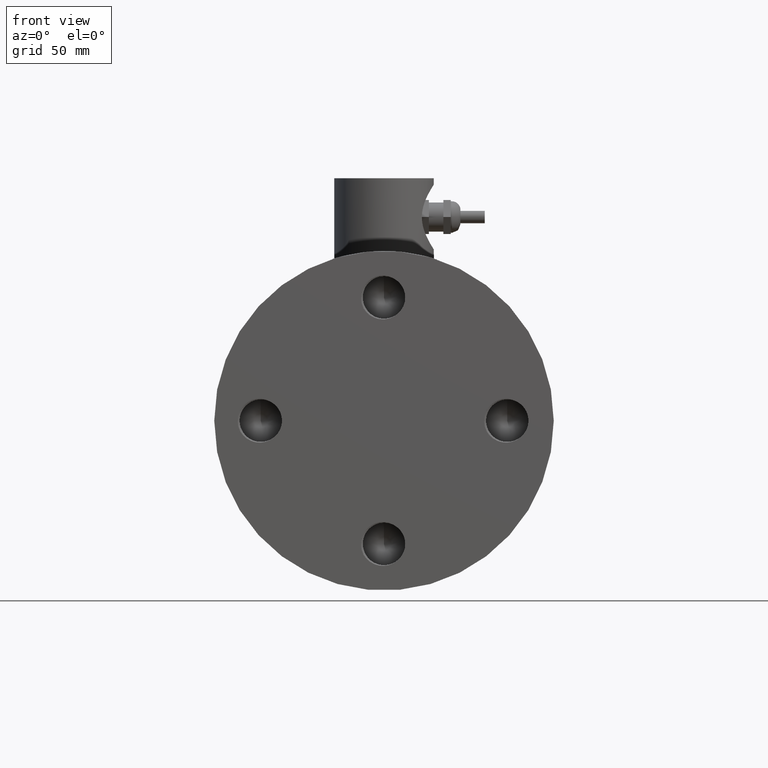
[diagram: clean part render]
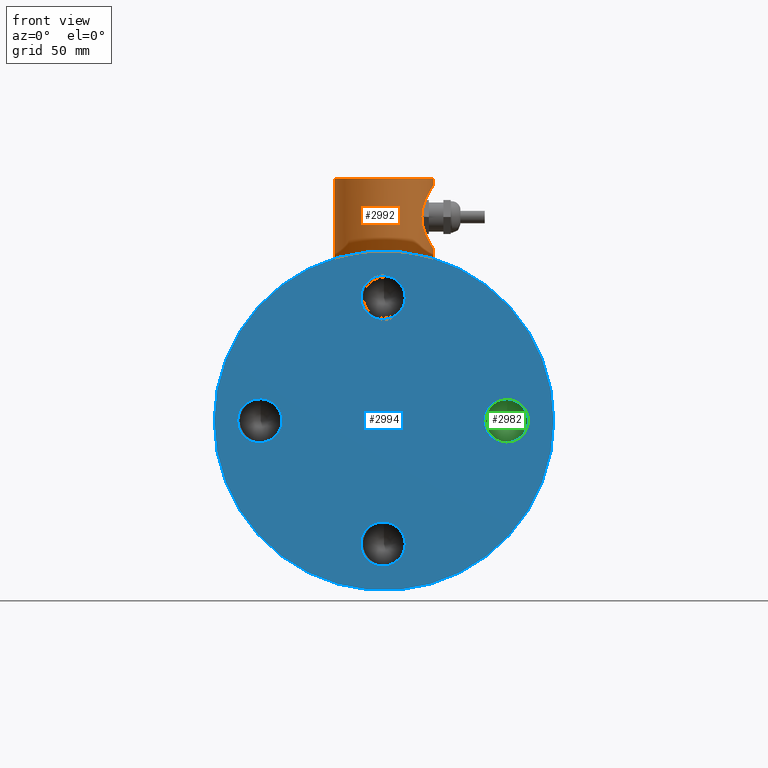
[diagram: same view with three faces highlighted in distinct colors, each labeled with its STEP entity id]
A machine part, front view with three faces highlighted in distinct colors.
Their STEP definitions:

[orange] entity #2992 — the highlighted cylindrical surface (bore or boss wall) has radius 20.5 mm, axis along (0, 0, 1).
#260=B_SPLINE_CURVE_WITH_KNOTS('',3,(#16526,#16527,#16528,#16529,#16530,
#16531,#16532,#16533,#16534,#16535,#16536,#16537,#16538,#16539,#16540,#16541,
#16542,#16543,#16544,#16545,#16546,#16547,#16548,#16549,#16550,#16551),
 .UNSPECIFIED.,.F.,.F.,(4,2,2,2,2,2,2,2,2,2,2,2,4),(2.08150158605407,2.34044044380816,
2.59937930156224,3.11725701707041,3.64013009458928,3.90156663334871,4.16300317210814,
4.42443971086757,4.68587624962701,5.20874932714587,5.72662704265404,5.98556590040813,
6.24450475816221),.UNSPECIFIED.);
#261=B_SPLINE_CURVE_WITH_KNOTS('',3,(#16555,#16556,#16557,#16558,#16559,
#16560,#16561,#16562,#16563,#16564,#16565,#16566,#16567,#16568,#16569,#16570,
#16571,#16572,#16573,#16574,#16575,#16576,#16577,#16578,#16579,#16580,#16581),
 .UNSPECIFIED.,.F.,.F.,(4,2,2,2,2,2,3,2,2,2,2,2,4),(6.24450475816221,6.5034436159163,
6.76238247367038,7.28026018917856,7.80313326669742,8.06456980545685,8.32600634421629,
8.58744288297572,8.84887942173515,9.37175249925401,9.88963021476219,10.1485690725163,
10.4075079302704),.UNSPECIFIED.);
#262=B_SPLINE_CURVE_WITH_KNOTS('',3,(#16588,#16589,#16590,#16591,#16592,
#16593,#16594,#16595,#16596,#16597,#16598,#16599,#16600,#16601,#16602,#16603,
#16604,#16605,#16606,#16607,#16608,#16609,#16610,#16611,#16612,#16613,#16614,
#16615,#16616,#16617,#16618,#16619,#16620,#16621,#16622,#16623,#16624,#16625,
#16626,#16627,#16628,#16629,#16630,#16631,#16632,#16633,#16634,#16635,#16636,
#16637,#16638,#16639,#16640,#16641,#16642,#16643,#16644,#16645,#16646,#16647,
#16648,#16649,#16650,#16651,#16652,#16653),.UNSPECIFIED.,.T.,.F.,(4,2,2,
2,2,2,2,2,2,2,2,2,2,2,2,2,2,2,2,2,2,2,2,2,2,2,2,2,2,2,2,2,4),(0.,0.388627741822901,
0.777255483645803,1.1658832254687,1.55451096729161,1.9430338723524,2.3315567774132,
2.720079682474,3.1086025875348,3.49712549259559,3.88564839765639,4.27417130271719,
4.66269420777799,5.05132194960089,5.43994969142379,5.82857743324669,6.21720517506959,
6.60583291689249,6.9944606587154,7.3830884005383,7.7717161423612,8.160239047422,
8.54876195248279,8.93728485754359,9.32580776260439,9.71433066766519,10.102853572726,
10.4913764777868,10.8798993828476,11.2685271246705,11.6571548664934,12.0457826083163,
12.4344103501392),.UNSPECIFIED.);
#277=FACE_BOUND('',#659,.T.);
#479=FACE_OUTER_BOUND('',#658,.T.);
#658=EDGE_LOOP('',(#2644,#2645,#2646,#2647));
#659=EDGE_LOOP('',(#2648,#2649));
#834=LINE('',#16587,#997);
#997=VECTOR('',#3789,0.807086614173228);
#1040=CIRCLE('',#3212,0.807086614173229);
#1331=VERTEX_POINT('',#16524);
#1332=VERTEX_POINT('',#16525);
#1334=VERTEX_POINT('',#16584);
#1335=VERTEX_POINT('',#16586);
#1776=EDGE_CURVE('',#1331,#1332,#260,.T.);
#1779=EDGE_CURVE('',#1332,#1331,#261,.T.);
#1780=EDGE_CURVE('',#1334,#1334,#1040,.T.);
#1781=EDGE_CURVE('',#1334,#1335,#834,.T.);
#1782=EDGE_CURVE('',#1335,#1335,#262,.T.);
#2644=ORIENTED_EDGE('',*,*,#1780,.F.);
#2645=ORIENTED_EDGE('',*,*,#1781,.T.);
#2646=ORIENTED_EDGE('',*,*,#1782,.F.);
#2647=ORIENTED_EDGE('',*,*,#1781,.F.);
#2648=ORIENTED_EDGE('',*,*,#1776,.T.);
#2649=ORIENTED_EDGE('',*,*,#1779,.T.);
#2824=CYLINDRICAL_SURFACE('',#3211,0.807086614173229);
#2992=ADVANCED_FACE('',(#479,#277),#2824,.T.);
#3211=AXIS2_PLACEMENT_3D('',#16583,#3785,#3786);
#3212=AXIS2_PLACEMENT_3D('',#16585,#3787,#3788);
#3785=DIRECTION('center_axis',(0.,0.,1.));
#3786=DIRECTION('ref_axis',(1.,0.,0.));
#3787=DIRECTION('center_axis',(0.,0.,1.));
#3788=DIRECTION('ref_axis',(1.,0.,0.));
#3789=DIRECTION('',(0.,0.,-1.));
#16524=CARTESIAN_POINT('',(0.807086614173229,4.84,3.8298031496063));
#16525=CARTESIAN_POINT('',(0.807086614173229,4.84,2.78255905511811));
#16526=CARTESIAN_POINT('Ctrl Pts',(0.807086614173229,4.84,3.8298031496063));
#16527=CARTESIAN_POINT('Ctrl Pts',(0.807086614173229,4.87398147739555,3.8298031496063));
#16528=CARTESIAN_POINT('Ctrl Pts',(0.804892575235416,4.90879941180725,3.82644185977266));
#16529=CARTESIAN_POINT('Ctrl Pts',(0.796054055324587,4.97741673016276,3.81266037837374));
#16530=CARTESIAN_POINT('Ctrl Pts',(0.789414663972882,5.01121788428467,3.8022457373812));
#16531=CARTESIAN_POINT('Ctrl Pts',(0.764319866982765,5.10760609499763,3.7616254435567));
#16532=CARTESIAN_POINT('Ctrl Pts',(0.74045315171569,5.16511385663128,3.72158064650109));
#16533=CARTESIAN_POINT('Ctrl Pts',(0.693614582431741,5.25583498447545,3.63085951865691));
#16534=CARTESIAN_POINT('Ctrl Pts',(0.667052238342781,5.29558741295157,3.5734541165197));
#16535=CARTESIAN_POINT('Ctrl Pts',(0.63690790475914,5.33600364876253,3.47754049256915));
#16536=CARTESIAN_POINT('Ctrl Pts',(0.628520918396346,5.34638953148984,3.44391704962915));
#16537=CARTESIAN_POINT('Ctrl Pts',(0.617136934627805,5.36020275579352,3.37539555768172));
#16538=CARTESIAN_POINT('Ctrl Pts',(0.614173228346457,5.36362204724409,3.34049035941725));
#16539=CARTESIAN_POINT('Ctrl Pts',(0.614173228346457,5.36362204724409,3.27187184530716));
#16540=CARTESIAN_POINT('Ctrl Pts',(0.617136934627805,5.36020275579352,3.23696664704268));
#16541=CARTESIAN_POINT('Ctrl Pts',(0.628520918396346,5.34638953148984,3.16844515509526));
#16542=CARTESIAN_POINT('Ctrl Pts',(0.63690790475914,5.33600364876253,3.13482171215525));
#16543=CARTESIAN_POINT('Ctrl Pts',(0.667052238342782,5.29558741295157,3.03890808820471));
#16544=CARTESIAN_POINT('Ctrl Pts',(0.693614582431741,5.25583498447545,2.98150268606749));
#16545=CARTESIAN_POINT('Ctrl Pts',(0.74045315171569,5.16511385663128,2.89078155822332));
#16546=CARTESIAN_POINT('Ctrl Pts',(0.764319866982765,5.10760609499763,2.85073676116771));
#16547=CARTESIAN_POINT('Ctrl Pts',(0.789414663972882,5.01121788428467,2.81011646734321));
#16548=CARTESIAN_POINT('Ctrl Pts',(0.796054055324587,4.97741673016276,2.79970182635067));
#16549=CARTESIAN_POINT('Ctrl Pts',(0.804892575235416,4.90879941180725,2.78592034495175));
#16550=CARTESIAN_POINT('Ctrl Pts',(0.807086614173229,4.87398147739555,2.78255905511811));
#16551=CARTESIAN_POINT('Ctrl Pts',(0.807086614173229,4.84,2.78255905511811));
#16555=CARTESIAN_POINT('Ctrl Pts',(0.807086614173229,4.84,2.78255905511811));
#16556=CARTESIAN_POINT('Ctrl Pts',(0.807086614173229,4.80601852260445,2.78255905511811));
#16557=CARTESIAN_POINT('Ctrl Pts',(0.804892575235416,4.77120058819275,2.78592034495175));
#16558=CARTESIAN_POINT('Ctrl Pts',(0.796054055324587,4.70258326983724,2.79970182635067));
#16559=CARTESIAN_POINT('Ctrl Pts',(0.789414663972882,4.66878211571533,2.81011646734321));
#16560=CARTESIAN_POINT('Ctrl Pts',(0.764319866982765,4.57239390500237,2.85073676116771));
#16561=CARTESIAN_POINT('Ctrl Pts',(0.74045315171569,4.51488614336872,2.89078155822332));
#16562=CARTESIAN_POINT('Ctrl Pts',(0.693614582431741,4.42416501552454,2.98150268606749));
#16563=CARTESIAN_POINT('Ctrl Pts',(0.667052238342781,4.38441258704843,3.03890808820471));
#16564=CARTESIAN_POINT('Ctrl Pts',(0.63690790475914,4.34399635123747,3.13482171215525));
#16565=CARTESIAN_POINT('Ctrl Pts',(0.628520918396346,4.33361046851016,3.16844515509526));
#16566=CARTESIAN_POINT('Ctrl Pts',(0.617136934627805,4.31979724420647,3.23696664704269));
#16567=CARTESIAN_POINT('Ctrl Pts',(0.614173228346457,4.31637795275591,3.27187184530716));
#16568=CARTESIAN_POINT('Ctrl Pts',(0.614173228346457,4.31637795275591,3.3061811023622));
#16569=CARTESIAN_POINT('Ctrl Pts',(0.614173228346457,4.31637795275591,3.34049035941725));
#16570=CARTESIAN_POINT('Ctrl Pts',(0.617136934627805,4.31979724420647,3.37539555768172));
#16571=CARTESIAN_POINT('Ctrl Pts',(0.628520918396346,4.33361046851016,3.44391704962915));
#16572=CARTESIAN_POINT('Ctrl Pts',(0.63690790475914,4.34399635123747,3.47754049256915));
#16573=CARTESIAN_POINT('Ctrl Pts',(0.667052238342781,4.38441258704843,3.5734541165197));
#16574=CARTESIAN_POINT('Ctrl Pts',(0.693614582431741,4.42416501552454,3.63085951865691));
#16575=CARTESIAN_POINT('Ctrl Pts',(0.74045315171569,4.51488614336872,3.72158064650109));
#16576=CARTESIAN_POINT('Ctrl Pts',(0.764319866982765,4.57239390500237,3.7616254435567));
#16577=CARTESIAN_POINT('Ctrl Pts',(0.789414663972882,4.66878211571533,3.8022457373812));
#16578=CARTESIAN_POINT('Ctrl Pts',(0.796054055324587,4.70258326983723,3.81266037837374));
#16579=CARTESIAN_POINT('Ctrl Pts',(0.804892575235416,4.77120058819275,3.82644185977266));
#16580=CARTESIAN_POINT('Ctrl Pts',(0.807086614173229,4.80601852260445,3.8298031496063));
#16581=CARTESIAN_POINT('Ctrl Pts',(0.807086614173229,4.84,3.8298031496063));
#16583=CARTESIAN_POINT('Origin',(0.,4.84,0.));
#16584=CARTESIAN_POINT('',(-0.807086614173229,4.84,3.93610236220472));
#16585=CARTESIAN_POINT('Origin',(0.,4.84,3.93610236220472));
#16586=CARTESIAN_POINT('',(-0.807086614173229,4.84,2.63412911551852));
#16587=CARTESIAN_POINT('',(-0.807086614173229,4.84,0.));
#16588=CARTESIAN_POINT('Ctrl Pts',(-0.807086614173229,4.84,2.63412911551852));
#16589=CARTESIAN_POINT('Ctrl Pts',(-0.807086614173229,4.89100101598726,
2.63412911551852));
#16590=CARTESIAN_POINT('Ctrl Pts',(-0.80217449478201,4.94364063398978,2.63565104719803));
#16591=CARTESIAN_POINT('Ctrl Pts',(-0.781599617350357,5.04815220244133,
2.64182558105333));
#16592=CARTESIAN_POINT('Ctrl Pts',(-0.765942407330718,5.10002558043531,
2.64647250484422));
#16593=CARTESIAN_POINT('Ctrl Pts',(-0.724670332624518,5.19935222881661,
2.65807023317607));
#16594=CARTESIAN_POINT('Ctrl Pts',(-0.699022705028526,5.24689033274214,
2.66501817666907));
#16595=CARTESIAN_POINT('Ctrl Pts',(-0.63987091118204,5.33472992855472,2.67983578620687));
#16596=CARTESIAN_POINT('Ctrl Pts',(-0.606362033111009,5.37503080266255,
2.68769030067154));
#16597=CARTESIAN_POINT('Ctrl Pts',(-0.5350404238687,5.44635241190486,2.70279209251901));
#16598=CARTESIAN_POINT('Ctrl Pts',(-0.494744070760986,5.47986016601963,
2.71057843401217));
#16599=CARTESIAN_POINT('Ctrl Pts',(-0.406901807497361,5.53901619919493,
2.72514918151638));
#16600=CARTESIAN_POINT('Ctrl Pts',(-0.359356516363402,5.56466875539157,
2.73191995107714));
#16601=CARTESIAN_POINT('Ctrl Pts',(-0.260015656409129,5.605946326615,2.74315795810324));
#16602=CARTESIAN_POINT('Ctrl Pts',(-0.208135472984882,5.62160412567748,
2.74762518663628));
#16603=CARTESIAN_POINT('Ctrl Pts',(-0.103621910610585,5.64217696553561,
2.75354808220135));
#16604=CARTESIAN_POINT('Ctrl Pts',(-0.0509872578819944,5.64708661417323,
2.755));
#16605=CARTESIAN_POINT('Ctrl Pts',(0.0509872578819944,5.64708661417323,
2.755));
#16606=CARTESIAN_POINT('Ctrl Pts',(0.103621910610585,5.64217696553561,2.75354808220135));
#16607=CARTESIAN_POINT('Ctrl Pts',(0.208135472984882,5.62160412567748,2.74762518663628));
#16608=CARTESIAN_POINT('Ctrl Pts',(0.260015656409129,5.605946326615,2.74315795810324));
#16609=CARTESIAN_POINT('Ctrl Pts',(0.359356516363403,5.56466875539157,2.73191995107714));
#16610=CARTESIAN_POINT('Ctrl Pts',(0.406901807497361,5.53901619919493,2.72514918151638));
#16611=CARTESIAN_POINT('Ctrl Pts',(0.494744070760985,5.47986016601963,2.71057843401217));
#16612=CARTESIAN_POINT('Ctrl Pts',(0.5350404238687,5.44635241190486,2.70279209251901));
#16613=CARTESIAN_POINT('Ctrl Pts',(0.606362033111009,5.37503080266255,2.68769030067154));
#16614=CARTESIAN_POINT('Ctrl Pts',(0.63987091118204,5.33472992855472,2.67983578620687));
#16615=CARTESIAN_POINT('Ctrl Pts',(0.699022705028526,5.24689033274214,2.66501817666907));
#16616=CARTESIAN_POINT('Ctrl Pts',(0.724670332624518,5.19935222881661,2.65807023317607));
#16617=CARTESIAN_POINT('Ctrl Pts',(0.765942407330719,5.10002558043531,2.64647250484422));
#16618=CARTESIAN_POINT('Ctrl Pts',(0.781599617350357,5.04815220244133,2.64182558105333));
#16619=CARTESIAN_POINT('Ctrl Pts',(0.80217449478201,4.94364063398978,2.63565104719803));
#16620=CARTESIAN_POINT('Ctrl Pts',(0.807086614173229,4.89100101598726,2.63412911551852));
#16621=CARTESIAN_POINT('Ctrl Pts',(0.807086614173229,4.78899898401274,2.63412911551852));
#16622=CARTESIAN_POINT('Ctrl Pts',(0.80217449478201,4.73635936601022,2.63565104719803));
#16623=CARTESIAN_POINT('Ctrl Pts',(0.781599617350357,4.63184779755867,2.64182558105333));
#16624=CARTESIAN_POINT('Ctrl Pts',(0.765942407330718,4.57997441956469,2.64647250484422));
#16625=CARTESIAN_POINT('Ctrl Pts',(0.724670332624518,4.48064777118339,2.65807023317607));
#16626=CARTESIAN_POINT('Ctrl Pts',(0.699022705028526,4.43310966725786,2.66501817666907));
#16627=CARTESIAN_POINT('Ctrl Pts',(0.63987091118204,4.34527007144528,2.67983578620687));
#16628=CARTESIAN_POINT('Ctrl Pts',(0.606362033111009,4.30496919733745,2.68769030067154));
#16629=CARTESIAN_POINT('Ctrl Pts',(0.5350404238687,4.23364758809514,2.70279209251901));
#16630=CARTESIAN_POINT('Ctrl Pts',(0.494744070760985,4.20013983398037,2.71057843401217));
#16631=CARTESIAN_POINT('Ctrl Pts',(0.40690180749736,4.14098380080507,2.72514918151638));
#16632=CARTESIAN_POINT('Ctrl Pts',(0.359356516363403,4.11533124460843,2.73191995107714));
#16633=CARTESIAN_POINT('Ctrl Pts',(0.26001565640913,4.074053673385,2.74315795810324));
#16634=CARTESIAN_POINT('Ctrl Pts',(0.208135472984883,4.05839587432252,2.74762518663628));
#16635=CARTESIAN_POINT('Ctrl Pts',(0.103621910610585,4.03782303446439,2.75354808220135));
#16636=CARTESIAN_POINT('Ctrl Pts',(0.0509872578819945,4.03291338582677,
2.755));
#16637=CARTESIAN_POINT('Ctrl Pts',(-0.0509872578819944,4.03291338582677,
2.755));
#16638=CARTESIAN_POINT('Ctrl Pts',(-0.103621910610585,4.03782303446439,
2.75354808220135));
#16639=CARTESIAN_POINT('Ctrl Pts',(-0.208135472984883,4.05839587432252,
2.74762518663628));
#16640=CARTESIAN_POINT('Ctrl Pts',(-0.26001565640913,4.074053673385,2.74315795810324));
#16641=CARTESIAN_POINT('Ctrl Pts',(-0.359356516363403,4.11533124460843,
2.73191995107714));
#16642=CARTESIAN_POINT('Ctrl Pts',(-0.40690180749736,4.14098380080507,2.72514918151638));
#16643=CARTESIAN_POINT('Ctrl Pts',(-0.494744070760985,4.20013983398037,
2.71057843401217));
#16644=CARTESIAN_POINT('Ctrl Pts',(-0.5350404238687,4.23364758809514,2.70279209251901));
#16645=CARTESIAN_POINT('Ctrl Pts',(-0.606362033111009,4.30496919733745,
2.68769030067154));
#16646=CARTESIAN_POINT('Ctrl Pts',(-0.63987091118204,4.34527007144528,2.67983578620687));
#16647=CARTESIAN_POINT('Ctrl Pts',(-0.699022705028526,4.43310966725786,
2.66501817666907));
#16648=CARTESIAN_POINT('Ctrl Pts',(-0.724670332624518,4.48064777118339,
2.65807023317607));
#16649=CARTESIAN_POINT('Ctrl Pts',(-0.765942407330718,4.57997441956469,
2.64647250484422));
#16650=CARTESIAN_POINT('Ctrl Pts',(-0.781599617350357,4.63184779755867,
2.64182558105333));
#16651=CARTESIAN_POINT('Ctrl Pts',(-0.80217449478201,4.73635936601022,2.63565104719803));
#16652=CARTESIAN_POINT('Ctrl Pts',(-0.807086614173229,4.78899898401274,
2.63412911551852));
#16653=CARTESIAN_POINT('Ctrl Pts',(-0.807086614173229,4.84,2.63412911551852));

[blue] entity #2994 — the highlighted planar face has unit normal (0, -1, 0).
#232=B_SPLINE_CURVE_WITH_KNOTS('',3,(#10688,#10689,#10690,#10691,#10692,
#10693,#10694,#10695,#10696,#10697,#10698,#10699,#10700,#10701,#10702,#10703,
#10704,#10705,#10706,#10707,#10708,#10709,#10710,#10711,#10712,#10713,#10714,
#10715,#10716,#10717,#10718,#10719,#10720,#10721,#10722,#10723,#10724,#10725,
#10726,#10727,#10728,#10729,#10730,#10731,#10732,#10733,#10734,#10735,#10736,
#10737,#10738,#10739),.UNSPECIFIED.,.F.,.F.,(4,3,3,3,3,3,3,3,3,3,3,3,3,
3,3,3,3,4),(0.,0.151305671684247,0.297815976772379,0.34029345467075,0.383170702364374,
0.444326281860511,0.599193568214076,0.65811486743797,0.699214070076193,
0.856502912327724,0.899592543157296,1.02238895391565,1.0826397808587,1.22380495989421,
1.30980678873745,1.36497013892972,1.52527001136097,1.62247305797271),
 .UNSPECIFIED.);
#235=B_SPLINE_CURVE_WITH_KNOTS('',3,(#11486,#11487,#11488,#11489,#11490,
#11491,#11492,#11493,#11494,#11495,#11496,#11497,#11498,#11499,#11500,#11501,
#11502,#11503,#11504,#11505,#11506,#11507,#11508,#11509,#11510,#11511,#11512,
#11513,#11514,#11515,#11516,#11517,#11518,#11519,#11520,#11521,#11522,#11523,
#11524,#11525,#11526,#11527,#11528,#11529,#11530,#11531,#11532,#11533,#11534,
#11535,#11536,#11537),.UNSPECIFIED.,.F.,.F.,(4,3,3,3,3,3,3,3,3,3,3,3,3,
3,3,3,3,4),(0.,0.160642636861641,0.316520360312698,0.36168498939677,0.397789477899626,
0.472398083763755,0.631330704409546,0.728973423463521,0.767819396279807,
0.924124953484752,0.934322910704771,1.052913402095,1.11534545105314,1.25012593125682,
1.33294613211787,1.3849064114605,1.53799436464142,1.62532069162854),
 .UNSPECIFIED.);
#240=B_SPLINE_CURVE_WITH_KNOTS('',3,(#12340,#12341,#12342,#12343,#12344,
#12345,#12346,#12347,#12348,#12349,#12350,#12351,#12352,#12353,#12354,#12355,
#12356,#12357,#12358,#12359,#12360,#12361,#12362,#12363,#12364,#12365,#12366,
#12367,#12368,#12369,#12370,#12371,#12372,#12373,#12374,#12375,#12376,#12377,
#12378,#12379,#12380,#12381,#12382,#12383,#12384,#12385,#12386,#12387,#12388,
#12389,#12390,#12391),.UNSPECIFIED.,.F.,.F.,(4,3,3,3,3,3,3,3,3,3,3,3,3,
3,3,3,3,4),(0.,0.151305751308619,0.297816016584565,0.340293662893456,0.383170741612186,
0.444326281860511,0.599193531894473,0.658114802985138,0.699214036310608,
0.856502856207985,0.899592543157296,1.02238895642418,1.08263978043045,1.22380495968009,
1.30980678939688,1.36497013892972,1.52527001179453,1.62247305797271),
 .UNSPECIFIED.);
#243=B_SPLINE_CURVE_WITH_KNOTS('',3,(#13138,#13139,#13140,#13141,#13142,
#13143,#13144,#13145,#13146,#13147,#13148,#13149,#13150,#13151,#13152,#13153,
#13154,#13155,#13156,#13157,#13158,#13159,#13160,#13161,#13162,#13163,#13164,
#13165,#13166,#13167,#13168,#13169,#13170,#13171,#13172,#13173,#13174,#13175,
#13176,#13177,#13178,#13179,#13180,#13181,#13182,#13183,#13184,#13185,#13186,
#13187,#13188,#13189),.UNSPECIFIED.,.F.,.F.,(4,3,3,3,3,3,3,3,3,3,3,3,3,
3,3,3,3,4),(0.,0.160642591144157,0.316520337453956,0.361684791428255,0.397789067715527,
0.472398083763755,0.631330706750273,0.728973436373956,0.767819402379825,
0.92412494461512,0.934322910704771,1.0529133918139,1.11534545394621,1.25012593270335,
1.33294613107506,1.3849064114605,1.53799436275669,1.62532069162854),
 .UNSPECIFIED.);
#248=B_SPLINE_CURVE_WITH_KNOTS('',3,(#13992,#13993,#13994,#13995,#13996,
#13997,#13998,#13999,#14000,#14001,#14002,#14003,#14004,#14005,#14006,#14007,
#14008,#14009,#14010,#14011,#14012,#14013,#14014,#14015,#14016,#14017,#14018,
#14019,#14020,#14021,#14022,#14023,#14024,#14025,#14026,#14027,#14028,#14029,
#14030,#14031,#14032,#14033,#14034,#14035,#14036,#14037,#14038,#14039,#14040,
#14041,#14042,#14043),.UNSPECIFIED.,.F.,.F.,(4,3,3,3,3,3,3,3,3,3,3,3,3,
3,3,3,3,4),(0.,0.15130570766261,0.297815994761562,0.340293548750738,0.3831707200977,
0.444326281860513,0.599193551803466,0.658114838316421,0.699214054838871,
0.856502886988081,0.899592543157311,1.02238895504876,1.08263978065909,1.22380495979442,
1.30980678903279,1.36497013892975,1.52527001155756,1.62247305797274),
 .UNSPECIFIED.);
#251=B_SPLINE_CURVE_WITH_KNOTS('',3,(#14790,#14791,#14792,#14793,#14794,
#14795,#14796,#14797,#14798,#14799,#14800,#14801,#14802,#14803,#14804,#14805,
#14806,#14807,#14808,#14809,#14810,#14811,#14812,#14813,#14814,#14815,#14816,
#14817,#14818,#14819,#14820,#14821,#14822,#14823,#14824,#14825,#14826,#14827,
#14828,#14829,#14830,#14831,#14832,#14833,#14834,#14835,#14836,#14837,#14838,
#14839,#14840,#14841),.UNSPECIFIED.,.F.,.F.,(4,3,3,3,3,3,3,3,3,3,3,3,3,
3,3,3,3,4),(0.,0.160642591144208,0.316520337453984,0.361684791440869,0.397789067716351,
0.472398083763759,0.631330706749958,0.728973436373405,0.767819402379531,
0.924124944614864,0.93432291070479,1.0529133918141,1.11534545396067,1.2501259327106,
1.33294613108079,1.38490641146054,1.53799436275665,1.62532069162858),
 .UNSPECIFIED.);
#256=B_SPLINE_CURVE_WITH_KNOTS('',3,(#15644,#15645,#15646,#15647,#15648,
#15649,#15650,#15651,#15652,#15653,#15654,#15655,#15656,#15657,#15658,#15659,
#15660,#15661,#15662,#15663,#15664,#15665,#15666,#15667,#15668,#15669,#15670,
#15671,#15672,#15673,#15674,#15675,#15676,#15677,#15678,#15679,#15680,#15681,
#15682,#15683,#15684,#15685,#15686,#15687,#15688,#15689,#15690,#15691,#15692,
#15693,#15694,#15695),.UNSPECIFIED.,.F.,.F.,(4,3,3,3,3,3,3,3,3,3,3,3,3,
3,3,3,3,4),(0.,0.151305671683838,0.297815976772176,0.340293454662674,0.383170702363223,
0.444326281860513,0.599193568214009,0.658114867437542,0.699214070092685,
0.8565029123436,0.899592543157311,1.02238895391636,1.08263978085918,1.22380495989447,
1.30980678873782,1.36497013892975,1.52527001136119,1.62247305797274),
 .UNSPECIFIED.);
#259=B_SPLINE_CURVE_WITH_KNOTS('',3,(#16442,#16443,#16444,#16445,#16446,
#16447,#16448,#16449,#16450,#16451,#16452,#16453,#16454,#16455,#16456,#16457,
#16458,#16459,#16460,#16461,#16462,#16463,#16464,#16465,#16466,#16467,#16468,
#16469,#16470,#16471,#16472,#16473,#16474,#16475,#16476,#16477,#16478,#16479,
#16480,#16481,#16482,#16483,#16484,#16485,#16486,#16487,#16488,#16489,#16490,
#16491,#16492,#16493),.UNSPECIFIED.,.F.,.F.,(4,3,3,3,3,3,3,3,3,3,3,3,3,
3,3,3,3,4),(0.,0.160642614067183,0.316520348915466,0.361684890660915,0.397789273311063,
0.47239808376375,0.631330705573236,0.728973429896006,0.767819399320888,
0.924124949056404,0.934322910704766,1.05291339696448,1.11534545251045,1.25012593198547,
1.33294613160305,1.38490641146049,1.53799436370022,1.62532069162853),
 .UNSPECIFIED.);
#278=FACE_BOUND('',#662,.T.);
#279=FACE_BOUND('',#663,.T.);
#280=FACE_BOUND('',#664,.T.);
#281=FACE_BOUND('',#665,.T.);
#311=PLANE('',#3214);
#481=FACE_OUTER_BOUND('',#661,.T.);
#661=EDGE_LOOP('',(#2651,#2652));
#662=EDGE_LOOP('',(#2653,#2654,#2655,#2656));
#663=EDGE_LOOP('',(#2657,#2658,#2659,#2660));
#664=EDGE_LOOP('',(#2661,#2662,#2663,#2664));
#665=EDGE_LOOP('',(#2665,#2666,#2667,#2668));
#1012=CIRCLE('',#3075,0.3445);
#1014=CIRCLE('',#3089,0.3445);
#1016=CIRCLE('',#3103,0.3445);
#1018=CIRCLE('',#3117,0.3445);
#1020=CIRCLE('',#3132,0.375);
#1022=CIRCLE('',#3147,0.375);
#1024=CIRCLE('',#3162,0.375);
#1026=CIRCLE('',#3177,0.375);
#1041=CIRCLE('',#3215,2.755);
#1042=CIRCLE('',#3216,2.755);
#1139=VERTEX_POINT('',#5312);
#1140=VERTEX_POINT('',#5338);
#1162=VERTEX_POINT('',#6239);
#1163=VERTEX_POINT('',#6265);
#1185=VERTEX_POINT('',#7166);
#1186=VERTEX_POINT('',#7192);
#1208=VERTEX_POINT('',#8093);
#1209=VERTEX_POINT('',#8119);
#1235=VERTEX_POINT('',#8573);
#1236=VERTEX_POINT('',#8580);
#1262=VERTEX_POINT('',#9005);
#1263=VERTEX_POINT('',#9012);
#1289=VERTEX_POINT('',#9437);
#1290=VERTEX_POINT('',#9444);
#1316=VERTEX_POINT('',#9869);
#1317=VERTEX_POINT('',#9876);
#1336=VERTEX_POINT('',#16656);
#1337=VERTEX_POINT('',#16657);
#1466=EDGE_CURVE('',#1140,#1139,#1012,.T.);
#1500=EDGE_CURVE('',#1163,#1162,#1014,.T.);
#1534=EDGE_CURVE('',#1186,#1185,#1016,.T.);
#1568=EDGE_CURVE('',#1209,#1208,#1018,.T.);
#1607=EDGE_CURVE('',#1236,#1235,#1020,.T.);
#1646=EDGE_CURVE('',#1263,#1262,#1022,.T.);
#1685=EDGE_CURVE('',#1290,#1289,#1024,.T.);
#1724=EDGE_CURVE('',#1317,#1316,#1026,.T.);
#1732=EDGE_CURVE('',#1162,#1317,#232,.T.);
#1735=EDGE_CURVE('',#1316,#1163,#235,.T.);
#1742=EDGE_CURVE('',#1139,#1290,#240,.T.);
#1745=EDGE_CURVE('',#1289,#1140,#243,.T.);
#1752=EDGE_CURVE('',#1208,#1263,#248,.T.);
#1755=EDGE_CURVE('',#1262,#1209,#251,.T.);
#1762=EDGE_CURVE('',#1185,#1236,#256,.T.);
#1765=EDGE_CURVE('',#1235,#1186,#259,.T.);
#1783=EDGE_CURVE('',#1336,#1337,#1041,.T.);
#1784=EDGE_CURVE('',#1337,#1336,#1042,.T.);
#2651=ORIENTED_EDGE('',*,*,#1783,.T.);
#2652=ORIENTED_EDGE('',*,*,#1784,.T.);
#2653=ORIENTED_EDGE('',*,*,#1735,.T.);
#2654=ORIENTED_EDGE('',*,*,#1500,.T.);
#2655=ORIENTED_EDGE('',*,*,#1732,.T.);
#2656=ORIENTED_EDGE('',*,*,#1724,.T.);
#2657=ORIENTED_EDGE('',*,*,#1745,.T.);
#2658=ORIENTED_EDGE('',*,*,#1466,.T.);
#2659=ORIENTED_EDGE('',*,*,#1742,.T.);
#2660=ORIENTED_EDGE('',*,*,#1685,.T.);
#2661=ORIENTED_EDGE('',*,*,#1755,.T.);
#2662=ORIENTED_EDGE('',*,*,#1568,.T.);
#2663=ORIENTED_EDGE('',*,*,#1752,.T.);
#2664=ORIENTED_EDGE('',*,*,#1646,.T.);
#2665=ORIENTED_EDGE('',*,*,#1765,.T.);
#2666=ORIENTED_EDGE('',*,*,#1534,.T.);
#2667=ORIENTED_EDGE('',*,*,#1762,.T.);
#2668=ORIENTED_EDGE('',*,*,#1607,.T.);
#2994=ADVANCED_FACE('',(#481,#278,#279,#280,#281),#311,.T.);
#3075=AXIS2_PLACEMENT_3D('',#5339,#3428,#3429);
#3089=AXIS2_PLACEMENT_3D('',#6266,#3466,#3467);
#3103=AXIS2_PLACEMENT_3D('',#7193,#3504,#3505);
#3117=AXIS2_PLACEMENT_3D('',#8120,#3542,#3543);
#3132=AXIS2_PLACEMENT_3D('',#8581,#3584,#3585);
#3147=AXIS2_PLACEMENT_3D('',#9013,#3626,#3627);
#3162=AXIS2_PLACEMENT_3D('',#9445,#3668,#3669);
#3177=AXIS2_PLACEMENT_3D('',#9877,#3710,#3711);
#3214=AXIS2_PLACEMENT_3D('',#16655,#3792,#3793);
#3215=AXIS2_PLACEMENT_3D('',#16658,#3794,#3795);
#3216=AXIS2_PLACEMENT_3D('',#16659,#3796,#3797);
#3428=DIRECTION('center_axis',(0.,1.,0.));
#3429=DIRECTION('ref_axis',(0.,0.,-1.));
#3466=DIRECTION('center_axis',(0.,1.,0.));
#3467=DIRECTION('ref_axis',(0.,0.,-1.));
#3504=DIRECTION('center_axis',(0.,1.,0.));
#3505=DIRECTION('ref_axis',(0.,0.,-1.));
#3542=DIRECTION('center_axis',(0.,1.,0.));
#3543=DIRECTION('ref_axis',(0.,0.,-1.));
#3584=DIRECTION('center_axis',(0.,1.,0.));
#3585=DIRECTION('ref_axis',(-6.06106008194311E-14,0.,-1.));
#3626=DIRECTION('center_axis',(0.,1.,0.));
#3627=DIRECTION('ref_axis',(-6.06106008194311E-14,0.,-1.));
#3668=DIRECTION('center_axis',(0.,1.,0.));
#3669=DIRECTION('ref_axis',(-6.07633440277431E-14,0.,-1.));
#3710=DIRECTION('center_axis',(0.,1.,0.));
#3711=DIRECTION('ref_axis',(-6.07630318040239E-14,0.,-1.));
#3792=DIRECTION('center_axis',(0.,-1.,0.));
#3793=DIRECTION('ref_axis',(0.,0.,-1.));
#3794=DIRECTION('center_axis',(0.,-1.,0.));
#3795=DIRECTION('ref_axis',(1.,0.,0.));
#3796=DIRECTION('center_axis',(0.,-1.,0.));
#3797=DIRECTION('ref_axis',(1.,0.,0.));
#5312=CARTESIAN_POINT('',(0.218700063662275,0.,-2.26617763270815));
#5338=CARTESIAN_POINT('',(0.218700063662275,0.,-1.73382236729185));
#5339=CARTESIAN_POINT('Origin',(1.22464679914735E-16,0.,-2.));
#6239=CARTESIAN_POINT('',(0.218700063662275,0.,1.73382236729185));
#6265=CARTESIAN_POINT('',(0.218700063662275,0.,2.26617763270815));
#6266=CARTESIAN_POINT('Origin',(1.22464679914735E-16,0.,2.));
#7166=CARTESIAN_POINT('',(2.21870006366228,0.,-0.266177632708154));
#7192=CARTESIAN_POINT('',(2.21870006366228,0.,0.266177632708153));
#7193=CARTESIAN_POINT('Origin',(2.,0.,0.));
#8093=CARTESIAN_POINT('',(-1.78129993633772,0.,-0.266177632708154));
#8119=CARTESIAN_POINT('',(-1.78129993633773,0.,0.266177632708154));
#8120=CARTESIAN_POINT('Origin',(-2.,0.,-2.44929359829471E-16));
#8573=CARTESIAN_POINT('',(1.66882930317454,0.,0.175928876436298));
#8580=CARTESIAN_POINT('',(1.66882930317454,0.,-0.175928876436298));
#8581=CARTESIAN_POINT('Origin',(2.,0.,0.));
#9005=CARTESIAN_POINT('',(-2.33117069682546,0.,0.175928876436297));
#9012=CARTESIAN_POINT('',(-2.33117069682546,0.,-0.175928876436299));
#9013=CARTESIAN_POINT('Origin',(-2.,0.,-2.44929359829471E-16));
#9437=CARTESIAN_POINT('',(-0.331170696825461,0.,-1.8240711235637));
#9444=CARTESIAN_POINT('',(-0.331170696825461,0.,-2.1759288764363));
#9445=CARTESIAN_POINT('Origin',(1.22464679914735E-16,0.,-2.));
#9869=CARTESIAN_POINT('',(-0.331170696825461,0.,2.1759288764363));
#9876=CARTESIAN_POINT('',(-0.331170696825461,0.,1.8240711235637));
#9877=CARTESIAN_POINT('Origin',(1.22464679914735E-16,0.,2.));
#10688=CARTESIAN_POINT('Ctrl Pts',(0.218700063662276,-4.37095678986282E-17,
1.73382236729185));
#10689=CARTESIAN_POINT('Ctrl Pts',(0.204006828633593,-4.26596738957518E-17,
1.72046628390682));
#10690=CARTESIAN_POINT('Ctrl Pts',(0.18820219634299,-4.29803725764183E-17,
1.70846159027721));
#10691=CARTESIAN_POINT('Ctrl Pts',(0.171509226963956,-4.77048955893622E-17,
1.69787268551558));
#10692=CARTESIAN_POINT('Ctrl Pts',(0.15534531182895,-5.22796831721225E-17,
1.68761937742801));
#10693=CARTESIAN_POINT('Ctrl Pts',(0.138347210657564,-5.97955935784114E-17,
1.67869306278453));
#10694=CARTESIAN_POINT('Ctrl Pts',(0.120686598976918,-6.85215773010839E-17,
1.67118537852256));
#10695=CARTESIAN_POINT('Ctrl Pts',(0.115566288553122,-7.10514865828808E-17,
1.66900868868416));
#10696=CARTESIAN_POINT('Ctrl Pts',(0.110390150332824,-5.53622671290943E-17,
1.66695149028583));
#10697=CARTESIAN_POINT('Ctrl Pts',(0.105162087496634,-5.8113236445223E-17,
1.66501665030345));
#10698=CARTESIAN_POINT('Ctrl Pts',(0.0998848216071329,-6.08900960565073E-17,
1.66306360089287));
#10699=CARTESIAN_POINT('Ctrl Pts',(0.0945623669451601,-2.74328546630669E-17,
1.66123820783759));
#10700=CARTESIAN_POINT('Ctrl Pts',(0.0892062352081946,-2.86229373536173E-17,
1.65954450938893));
#10701=CARTESIAN_POINT('Ctrl Pts',(0.0815668143532854,-3.032034566464E-17,
1.657128796728));
#10702=CARTESIAN_POINT('Ctrl Pts',(0.0738545574018464,-5.49227858948241E-17,
1.65497932103832));
#10703=CARTESIAN_POINT('Ctrl Pts',(0.0660824582320823,-5.11743425413158E-17,
1.65310128083429));
#10704=CARTESIAN_POINT('Ctrl Pts',(0.0464007886671953,-4.26388871738619E-17,
1.6483454271173));
#10705=CARTESIAN_POINT('Ctrl Pts',(0.0263364440810687,-2.35594901907174E-17,
1.6453265560082));
#10706=CARTESIAN_POINT('Ctrl Pts',(0.00611639677689175,-1.90819582357449E-17,
1.64401595242265));
#10707=CARTESIAN_POINT('Ctrl Pts',(-0.00157658658701074,-1.73784222190992E-17,
1.6435173160234));
#10708=CARTESIAN_POINT('Ctrl Pts',(-0.00929226318057221,-1.07022668701933E-17,
1.64326648062976));
#10709=CARTESIAN_POINT('Ctrl Pts',(-0.017018441323802,-7.80625564189563E-18,
1.64326381421167));
#10710=CARTESIAN_POINT('Ctrl Pts',(-0.022407659913857,-5.78620934484949E-18,
1.64326195431281));
#10711=CARTESIAN_POINT('Ctrl Pts',(-0.0278037237564014,-4.11700109448642E-17,
1.64338094281996));
#10712=CARTESIAN_POINT('Ctrl Pts',(-0.0331970242443847,-4.0766001685455E-17,
1.64362096494155));
#10713=CARTESIAN_POINT('Ctrl Pts',(-0.0538374730904795,-3.92198366848649E-17,
1.64453954241257));
#10714=CARTESIAN_POINT('Ctrl Pts',(-0.0743156266813797,-1.12025150210769E-17,
1.64722025443842));
#10715=CARTESIAN_POINT('Ctrl Pts',(-0.0943993846624403,-2.77555756156289E-17,
1.65163024577935));
#10716=CARTESIAN_POINT('Ctrl Pts',(-0.0999013751703903,-3.2290323662017E-17,
1.65283837279028));
#10717=CARTESIAN_POINT('Ctrl Pts',(-0.10537381099564,-3.00445508708813E-17,
1.65417658124882));
#10718=CARTESIAN_POINT('Ctrl Pts',(-0.110811953390127,-3.29597460435593E-17,
1.65564487461123));
#10719=CARTESIAN_POINT('Ctrl Pts',(-0.126309518683204,-3.94617114725667E-17,
1.65982920275171));
#10720=CARTESIAN_POINT('Ctrl Pts',(-0.141529033144487,-1.96598497974473E-17,
1.66506863048232));
#10721=CARTESIAN_POINT('Ctrl Pts',(-0.156380164691538,-1.56125112837913E-17,
1.67130883504766));
#10722=CARTESIAN_POINT('Ctrl Pts',(-0.163666965268393,-1.36266593288341E-17,
1.6743706304457));
#10723=CARTESIAN_POINT('Ctrl Pts',(-0.170870259869006,1.38371164842846E-17,
1.67767665156887));
#10724=CARTESIAN_POINT('Ctrl Pts',(-0.177948538532732,6.93889390390723E-18,
1.6812058594386));
#10725=CARTESIAN_POINT('Ctrl Pts',(-0.194532650743717,-9.22335440027542E-18,
1.68947464654178));
#10726=CARTESIAN_POINT('Ctrl Pts',(-0.210458527726247,-2.47969943747802E-17,
1.69897566532293));
#10727=CARTESIAN_POINT('Ctrl Pts',(-0.225593077471156,-3.29597460435593E-17,
1.70961567085219));
#10728=CARTESIAN_POINT('Ctrl Pts',(-0.234813474212577,-3.79327257592696E-17,
1.71609786384532));
#10729=CARTESIAN_POINT('Ctrl Pts',(-0.24374002012641,-9.63012237491254E-18,
1.72300343017203));
#10730=CARTESIAN_POINT('Ctrl Pts',(-0.252339934168589,-5.20417042793042E-18,
1.73031648097074));
#10731=CARTESIAN_POINT('Ctrl Pts',(-0.257856096746909,-2.36527338969912E-18,
1.73500722287251));
#10732=CARTESIAN_POINT('Ctrl Pts',(-0.263240279354477,-2.36997230908033E-17,
1.73986841131953));
#10733=CARTESIAN_POINT('Ctrl Pts',(-0.268466094855347,-2.25514051876985E-17,
1.74487910593342));
#10734=CARTESIAN_POINT('Ctrl Pts',(-0.283651857779804,-2.24058647649187E-17,
1.75943974636946));
#10735=CARTESIAN_POINT('Ctrl Pts',(-0.297532299443361,-2.42861286636753E-17,
1.77528236039636));
#10736=CARTESIAN_POINT('Ctrl Pts',(-0.310012964266925,-2.42861286636753E-17,
1.79219115293655));
#10737=CARTESIAN_POINT('Ctrl Pts',(-0.317581021721935,-2.42861286636753E-17,
1.80244434980131));
#10738=CARTESIAN_POINT('Ctrl Pts',(-0.324633808681618,3.1322061381659E-18,
1.81309049551859));
#10739=CARTESIAN_POINT('Ctrl Pts',(-0.331143481003593,3.46944695195361E-18,
1.82408781346774));
#11486=CARTESIAN_POINT('Ctrl Pts',(-0.331170696825464,-1.09273919746571E-16,
2.17592887643629));
#11487=CARTESIAN_POINT('Ctrl Pts',(-0.320436295129732,-1.12246405649575E-16,
2.19407305328782));
#11488=CARTESIAN_POINT('Ctrl Pts',(-0.308191384066338,-1.28370407258911E-16,
2.21121606946507));
#11489=CARTESIAN_POINT('Ctrl Pts',(-0.294613874299975,-1.30321101132758E-16,
2.22721241944514));
#11490=CARTESIAN_POINT('Ctrl Pts',(-0.281439094840036,-1.32213934356524E-16,
2.24273429251156));
#11491=CARTESIAN_POINT('Ctrl Pts',(-0.267008433688057,-1.10643274509516E-16,
2.25717725093141));
#11492=CARTESIAN_POINT('Ctrl Pts',(-0.251451994868084,-1.18394877235417E-16,
2.270375151296));
#11493=CARTESIAN_POINT('Ctrl Pts',(-0.246944610659373,-1.20640857316287E-16,
2.27419916322958));
#11494=CARTESIAN_POINT('Ctrl Pts',(-0.242342561959847,-1.02673141996202E-16,
2.27791839413001));
#11495=CARTESIAN_POINT('Ctrl Pts',(-0.237648688225595,-1.04083408558608E-16,
2.28152812620736));
#11496=CARTESIAN_POINT('Ctrl Pts',(-0.233896417616738,-1.05210772026901E-16,
2.28441373675987));
#11497=CARTESIAN_POINT('Ctrl Pts',(-0.230087924502245,-1.51858487895884E-16,
2.28722734313612));
#11498=CARTESIAN_POINT('Ctrl Pts',(-0.22623162038269,-1.49186218934005E-16,
2.2899622463866));
#11499=CARTESIAN_POINT('Ctrl Pts',(-0.218262708868395,-1.43664072796303E-16,
2.2956138239924));
#11500=CARTESIAN_POINT('Ctrl Pts',(-0.210081571537287,-1.22068717010944E-16,
2.30093578793272));
#11501=CARTESIAN_POINT('Ctrl Pts',(-0.201704043520727,-1.196959198424E-16,
2.30591195143941));
#11502=CARTESIAN_POINT('Ctrl Pts',(-0.183858079683389,-1.13865883438021E-16,
2.31651226621167));
#11503=CARTESIAN_POINT('Ctrl Pts',(-0.165121895822288,-9.75235229810756E-17,
2.32554669460795));
#11504=CARTESIAN_POINT('Ctrl Pts',(-0.145716944928671,-9.54097911787244E-17,
2.33294805413431));
#11505=CARTESIAN_POINT('Ctrl Pts',(-0.133795212557665,-9.41111872817157E-17,
2.33749519408528));
#11506=CARTESIAN_POINT('Ctrl Pts',(-0.121620617754605,-1.12797918244458E-16,
2.34142500083562));
#11507=CARTESIAN_POINT('Ctrl Pts',(-0.109243144069898,-1.14491749414469E-16,
2.34471218439673));
#11508=CARTESIAN_POINT('Ctrl Pts',(-0.104318916119786,-1.15165619624385E-16,
2.34601995055168));
#11509=CARTESIAN_POINT('Ctrl Pts',(-0.0993712845107629,-1.07957177636511E-16,
2.34722357601596));
#11510=CARTESIAN_POINT('Ctrl Pts',(-0.0944058166078864,-1.07552855510562E-16,
2.34832185022527));
#11511=CARTESIAN_POINT('Ctrl Pts',(-0.0744261334882765,-1.05925973993508E-16,
2.35274100489701));
#11512=CARTESIAN_POINT('Ctrl Pts',(-0.054146425459914,-1.08320085400642E-16,
2.35546163701594));
#11513=CARTESIAN_POINT('Ctrl Pts',(-0.0337780322239148,-8.50014503228635E-17,
2.3564118695719));
#11514=CARTESIAN_POINT('Ctrl Pts',(-0.0324491223209298,-8.34800556443582E-17,
2.35647386628608));
#11515=CARTESIAN_POINT('Ctrl Pts',(-0.0311198339508248,-9.06537835243072E-17,
2.35652830839796));
#11516=CARTESIAN_POINT('Ctrl Pts',(-0.02979022579609,-9.0205620750794E-17,
2.35657516812436));
#11517=CARTESIAN_POINT('Ctrl Pts',(-0.0143284150604128,-8.32592806356132E-17,
2.35712009274605));
#11518=CARTESIAN_POINT('Ctrl Pts',(0.00117703599822503,-8.62283343682436E-17,
2.35664100572243));
#11519=CARTESIAN_POINT('Ctrl Pts',(0.0166268810701941,-9.0205620750794E-17,
2.35514987873226));
#11520=CARTESIAN_POINT('Ctrl Pts',(0.0247604630515252,-9.22994660097602E-17,
2.35436487386245));
#11521=CARTESIAN_POINT('Ctrl Pts',(0.0328850802128257,-1.12791240698539E-16,
2.3532976441937));
#11522=CARTESIAN_POINT('Ctrl Pts',(0.0409498371734057,-1.11022302462516E-16,
2.35195523862829));
#11523=CARTESIAN_POINT('Ctrl Pts',(0.0583603151893014,-1.07203457031674E-16,
2.349057206772));
#11524=CARTESIAN_POINT('Ctrl Pts',(0.075517832185123,-9.55507698707741E-17,
2.34487830764471));
#11525=CARTESIAN_POINT('Ctrl Pts',(0.0922757616486869,-1.07552855510562E-16,
2.33944643739328));
#11526=CARTESIAN_POINT('Ctrl Pts',(0.10257321037487,-1.14927923042126E-16,
2.33610865001788));
#11527=CARTESIAN_POINT('Ctrl Pts',(0.112719657876196,-9.51010874545839E-17,
2.33229718067439));
#11528=CARTESIAN_POINT('Ctrl Pts',(0.122678522855347,-9.19403442267708E-17,
2.3280133854445));
#11529=CARTESIAN_POINT('Ctrl Pts',(0.128926580706841,-8.99573364661034E-17,
2.3253257899729));
#11530=CARTESIAN_POINT('Ctrl Pts',(0.13510362089759,-1.02108320505581E-16,
2.32245048710442));
#11531=CARTESIAN_POINT('Ctrl Pts',(0.141180226428831,-1.02348685082632E-16,
2.31939786060159));
#11532=CARTESIAN_POINT('Ctrl Pts',(0.159083423155919,-9.94988904186464E-17,
2.31040406093276));
#11533=CARTESIAN_POINT('Ctrl Pts',(0.176151128860606,-1.47067286137831E-18,
2.29986145291474));
#11534=CARTESIAN_POINT('Ctrl Pts',(0.192213979742714,6.93889390390723E-18,
2.28792378040157));
#11535=CARTESIAN_POINT('Ctrl Pts',(0.201376750158873,1.17359831712612E-17,
2.28111414534088));
#11536=CARTESIAN_POINT('Ctrl Pts',(0.21021203371358,8.50425987535959E-18,
2.2738497396737));
#11537=CARTESIAN_POINT('Ctrl Pts',(0.218682878374533,6.93889390390723E-18,
2.26615386522149));
#12340=CARTESIAN_POINT('Ctrl Pts',(0.218700063662276,-4.37095678986282E-17,
-2.26617763270815));
#12341=CARTESIAN_POINT('Ctrl Pts',(0.204006820901302,-4.26596733432467E-17,
-2.27953372312179));
#12342=CARTESIAN_POINT('Ctrl Pts',(0.188202181697624,-5.02006136116385E-17,
-2.29153842454611));
#12343=CARTESIAN_POINT('Ctrl Pts',(0.171509205213276,-5.24753851482984E-17,
-2.30212733626288));
#12344=CARTESIAN_POINT('Ctrl Pts',(0.155345296096705,-5.46780600525618E-17,
-2.31238064290318));
#12345=CARTESIAN_POINT('Ctrl Pts',(0.13834720209493,-3.82305413247099E-17,
-2.32130695743295));
#12346=CARTESIAN_POINT('Ctrl Pts',(0.120686597401756,-4.46691295064028E-17,
-2.32881464166515));
#12347=CARTESIAN_POINT('Ctrl Pts',(0.115566267311951,-4.65358660862284E-17,
-2.33099134071633));
#12348=CARTESIAN_POINT('Ctrl Pts',(0.110390108937538,-3.51235121070447E-17,
-2.3330485473225));
#12349=CARTESIAN_POINT('Ctrl Pts',(0.105162025476082,-2.90566182226115E-17,
-2.33498339444044));
#12350=CARTESIAN_POINT('Ctrl Pts',(0.099884780487158,-2.2932675178089E-17,
-2.33693643561371));
#12351=CARTESIAN_POINT('Ctrl Pts',(0.0945623472109234,-8.1259680633199E-17,
-2.33876182126915));
#12352=CARTESIAN_POINT('Ctrl Pts',(0.0892062369419887,-8.06646416329215E-17,
-2.34045551326066));
#12353=CARTESIAN_POINT('Ctrl Pts',(0.08156682150338,-7.9815938022083E-17,
-2.34287122468154));
#12354=CARTESIAN_POINT('Ctrl Pts',(0.0738545698454395,-5.58608705280775E-17,
-2.34502069921977));
#12355=CARTESIAN_POINT('Ctrl Pts',(0.066082475737558,-5.20417042793042E-17,
-2.34689873827824));
#12356=CARTESIAN_POINT('Ctrl Pts',(0.0464008109757829,-4.24597881428223E-17,
-2.35165459103107));
#12357=CARTESIAN_POINT('Ctrl Pts',(0.0263364694001563,-3.42671855855437E-17,
-2.35467345979939));
#12358=CARTESIAN_POINT('Ctrl Pts',(0.00611642431723653,-4.5102810375397E-17,
-2.35598406092754));
#12359=CARTESIAN_POINT('Ctrl Pts',(-0.00157655633254519,-4.92253655672769E-17,
-2.3564826962707));
#12360=CARTESIAN_POINT('Ctrl Pts',(-0.00929223031569056,-4.49070334450397E-17,
-2.35673353071155));
#12361=CARTESIAN_POINT('Ctrl Pts',(-0.0170184059069376,-3.98986399474666E-17,
-2.3567361963504));
#12362=CARTESIAN_POINT('Ctrl Pts',(-0.022407629314043,-3.64051455076439E-17,
-2.356738055708));
#12363=CARTESIAN_POINT('Ctrl Pts',(-0.0278036980015691,-4.77761913942565E-17,
-2.35661906644887));
#12364=CARTESIAN_POINT('Ctrl Pts',(-0.0331970033757353,-4.77048955893622E-17,
-2.3563790433859));
#12365=CARTESIAN_POINT('Ctrl Pts',(-0.0538374525765984,-4.74320429809775E-17,
-2.35546046312861));
#12366=CARTESIAN_POINT('Ctrl Pts',(-0.0743156066678981,-1.63401182394837E-17,
-2.35277974872386));
#12367=CARTESIAN_POINT('Ctrl Pts',(-0.094399364212037,-1.56125112837913E-17,
-2.34836975670614));
#12368=CARTESIAN_POINT('Ctrl Pts',(-0.0999013625480117,-1.54131814397287E-17,
-2.34716162776464));
#12369=CARTESIAN_POINT('Ctrl Pts',(-0.105373806045755,-2.99947146131287E-17,
-2.3458234171275));
#12370=CARTESIAN_POINT('Ctrl Pts',(-0.110811955914601,-3.29597460435593E-17,
-2.34435512136509));
#12371=CARTESIAN_POINT('Ctrl Pts',(-0.126309522640662,-4.13384469973784E-17,
-2.34017079174928));
#12372=CARTESIAN_POINT('Ctrl Pts',(-0.141529037640782,-3.4450870789578E-17,
-2.3349313634525));
#12373=CARTESIAN_POINT('Ctrl Pts',(-0.156380169179315,-3.29597460435593E-17,
-2.32869115886865));
#12374=CARTESIAN_POINT('Ctrl Pts',(-0.163666969247958,-3.2228116411605E-17,
-2.32562936367332));
#12375=CARTESIAN_POINT('Ctrl Pts',(-0.170870263219463,-4.1737881942294E-17,
-2.32232334291904));
#12376=CARTESIAN_POINT('Ctrl Pts',(-0.177948541180822,-4.16333634234434E-17,
-2.31879413553781));
#12377=CARTESIAN_POINT('Ctrl Pts',(-0.194532652579699,-4.13884808730086E-17,
-2.31052534916354));
#12378=CARTESIAN_POINT('Ctrl Pts',(-0.210458528282717,-2.49385938232475E-17,
-2.30102433164135));
#12379=CARTESIAN_POINT('Ctrl Pts',(-0.225593076814385,-1.73472347597681E-17,
-2.29038432734834));
#12380=CARTESIAN_POINT('Ctrl Pts',(-0.234813472896334,-1.27223635771809E-17,
-2.28390213505235));
#12381=CARTESIAN_POINT('Ctrl Pts',(-0.243740018169708,-1.25292638287331E-17,
-2.27699656940759));
#12382=CARTESIAN_POINT('Ctrl Pts',(-0.252339931709226,-1.56125112837913E-17,
-2.26968351915226));
#12383=CARTESIAN_POINT('Ctrl Pts',(-0.257856093843158,-1.75901698710527E-17,
-2.26499277770275));
#12384=CARTESIAN_POINT('Ctrl Pts',(-0.263240276068829,-2.53706511147542E-17,
-2.26013158965856));
#12385=CARTESIAN_POINT('Ctrl Pts',(-0.268466091283533,-2.42861286636753E-17,
-2.25512089536387));
#12386=CARTESIAN_POINT('Ctrl Pts',(-0.283651853599022,-2.11346012002555E-17,
-2.24056025564193));
#12387=CARTESIAN_POINT('Ctrl Pts',(-0.297532295418417,2.9002901341843E-18,
-2.22471764159023));
#12388=CARTESIAN_POINT('Ctrl Pts',(-0.310012960748441,1.04083408558608E-17,
-2.20780884866766));
#12389=CARTESIAN_POINT('Ctrl Pts',(-0.317581018456334,1.49610918216879E-17,
-2.19755565164451));
#12390=CARTESIAN_POINT('Ctrl Pts',(-0.324633805805854,2.81034010236236E-19,
-2.18690950564235));
#12391=CARTESIAN_POINT('Ctrl Pts',(-0.3311434785655,0.,-2.17591218736333));
#13138=CARTESIAN_POINT('Ctrl Pts',(-0.331170696825464,-1.09273919746571E-16,
-1.82407112356371));
#13139=CARTESIAN_POINT('Ctrl Pts',(-0.320436298184648,-1.12246404803632E-16,
-1.80592695187586));
#13140=CARTESIAN_POINT('Ctrl Pts',(-0.308191387778681,-9.91590693938139E-17,
-1.78878394182116));
#13141=CARTESIAN_POINT('Ctrl Pts',(-0.294613878325723,-1.01481323344643E-16,
-1.77278759775641));
#13142=CARTESIAN_POINT('Ctrl Pts',(-0.281439093488445,-1.03734696560526E-16,
-1.75726572373626));
#13143=CARTESIAN_POINT('Ctrl Pts',(-0.267008425545516,-1.08639640711909E-16,
-1.74282276510085));
#13144=CARTESIAN_POINT('Ctrl Pts',(-0.25145198058059,-1.09721259855533E-16,
-1.72962486438124));
#13145=CARTESIAN_POINT('Ctrl Pts',(-0.246944612728185,-1.10034651209889E-16,
-1.72580086773182));
#13146=CARTESIAN_POINT('Ctrl Pts',(-0.242342581201254,-1.09935722938614E-16,
-1.72208165126076));
#13147=CARTESIAN_POINT('Ctrl Pts',(-0.237648725473234,-1.10588621593521E-16,
-1.71847193267865));
#13148=CARTESIAN_POINT('Ctrl Pts',(-0.233896476765579,-1.11110546057344E-16,
-1.71558633868737));
#13149=CARTESIAN_POINT('Ctrl Pts',(-0.230088006155761,-1.25642190137001E-16,
-1.71277274787039));
#13150=CARTESIAN_POINT('Ctrl Pts',(-0.226231725234072,-1.25767452008319E-16,
-1.71003785921345));
#13151=CARTESIAN_POINT('Ctrl Pts',(-0.218262771005949,-1.26026304031635E-16,
-1.7043862474744));
#13152=CARTESIAN_POINT('Ctrl Pts',(-0.210081589016359,-1.2310865980967E-16,
-1.69906425271223));
#13153=CARTESIAN_POINT('Ctrl Pts',(-0.201704014882455,-1.20563281580388E-16,
-1.69408806185248));
#13154=CARTESIAN_POINT('Ctrl Pts',(-0.183858050656032,-1.15141099920587E-16,
-1.68348774693464));
#13155=CARTESIAN_POINT('Ctrl Pts',(-0.16512186954916,-1.09506269032496E-16,
-1.67445331693539));
#13156=CARTESIAN_POINT('Ctrl Pts',(-0.145716922698422,-1.17961196366423E-16,
-1.66705195522283));
#13157=CARTESIAN_POINT('Ctrl Pts',(-0.133795191696291,-1.23155612516747E-16,
-1.66250481350348));
#13158=CARTESIAN_POINT('Ctrl Pts',(-0.121620598702672,-1.25669161334503E-16,
-1.6585750048793));
#13159=CARTESIAN_POINT('Ctrl Pts',(-0.109243126848434,-1.33573707650214E-16,
-1.65528781955118));
#13160=CARTESIAN_POINT('Ctrl Pts',(-0.104318901022902,-1.36718434745159E-16,
-1.65398005306408));
#13161=CARTESIAN_POINT('Ctrl Pts',(-0.0993712715670944,-1.13341046684696E-16,
-1.65277642723017));
#13162=CARTESIAN_POINT('Ctrl Pts',(-0.0944058057966923,-1.12757025938492E-16,
-1.65167815262162));
#13163=CARTESIAN_POINT('Ctrl Pts',(-0.0744261296682568,-1.10407086194472E-16,
-1.64725899599188));
#13164=CARTESIAN_POINT('Ctrl Pts',(-0.0541464283516325,-1.08821290893843E-16,
-1.64453836173206));
#13165=CARTESIAN_POINT('Ctrl Pts',(-0.0337780396765538,-9.8879238130678E-17,
-1.64358812767681));
#13166=CARTESIAN_POINT('Ctrl Pts',(-0.0324491287880544,-9.82305809206372E-17,
-1.64352613080495));
#13167=CARTESIAN_POINT('Ctrl Pts',(-0.0311198394225318,-9.06596807978226E-17,
-1.64347168855271));
#13168=CARTESIAN_POINT('Ctrl Pts',(-0.0297902302621183,-9.0205620750794E-17,
-1.64342482870358));
#13169=CARTESIAN_POINT('Ctrl Pts',(-0.0143284226198514,-8.49940045634069E-17,
-1.64287990317588));
#13170=CARTESIAN_POINT('Ctrl Pts',(0.001177026649841,-1.12365958601193E-16,
-1.64335898971657));
#13171=CARTESIAN_POINT('Ctrl Pts',(0.0166268707574638,-1.14491749414469E-16,
-1.64485011643076));
#13172=CARTESIAN_POINT('Ctrl Pts',(0.0247604546525659,-1.1561087384076E-16,
-1.64563512138897));
#13173=CARTESIAN_POINT('Ctrl Pts',(0.0328850739515726,-1.05020143390551E-16,
-1.64670235137162));
#13174=CARTESIAN_POINT('Ctrl Pts',(0.0409498331720346,-1.02348685082632E-16,
-1.64804475744008));
#13175=CARTESIAN_POINT('Ctrl Pts',(0.0583603122058913,-9.65814491877473E-17,
-1.65094278973973));
#13176=CARTESIAN_POINT('Ctrl Pts',(0.0755178309041858,-1.00085928390793E-16,
-1.65512168962078));
#13177=CARTESIAN_POINT('Ctrl Pts',(0.092275761990165,-9.54097911787244E-17,
-1.6605535606051));
#13178=CARTESIAN_POINT('Ctrl Pts',(0.102573211514298,-9.25363883307152E-17,
-1.66389134836635));
#13179=CARTESIAN_POINT('Ctrl Pts',(0.112719659789493,-1.29918219296783E-16,
-1.66770281806964));
#13180=CARTESIAN_POINT('Ctrl Pts',(0.122678525340724,-1.38777878078145E-16,
-1.67198661355533));
#13181=CARTESIAN_POINT('Ctrl Pts',(0.128926583864327,-1.44336309033993E-16,
-1.67467420932214));
#13182=CARTESIAN_POINT('Ctrl Pts',(0.135103624640579,-1.02258548364429E-16,
-1.67754951246367));
#13183=CARTESIAN_POINT('Ctrl Pts',(0.141180230622755,-1.02348685082632E-16,
-1.68060213919679));
#13184=CARTESIAN_POINT('Ctrl Pts',(0.159083428098692,-1.02614250345634E-16,
-1.68959593925291));
#13185=CARTESIAN_POINT('Ctrl Pts',(0.176151133444316,-3.23245097751714E-17,
-1.70013854718913));
#13186=CARTESIAN_POINT('Ctrl Pts',(0.192213983475416,-2.08166817117217E-17,
-1.71207621937804));
#13187=CARTESIAN_POINT('Ctrl Pts',(0.201376753716696,-1.42522436252437E-17,
-1.71888585448457));
#13188=CARTESIAN_POINT('Ctrl Pts',(0.210212036913756,8.65574694190917E-18,
-1.72615026014927));
#13189=CARTESIAN_POINT('Ctrl Pts',(0.218682881144661,6.93889390390723E-18,
-1.73384613458994));
#13992=CARTESIAN_POINT('Ctrl Pts',(-1.78129993633772,-4.37095678986282E-17,
-0.266177632708153));
#13993=CARTESIAN_POINT('Ctrl Pts',(-1.79599317486025,-4.12598146427331E-17,
-0.279533719269066));
#13994=CARTESIAN_POINT('Ctrl Pts',(-1.81179781027451,-6.1878800292402E-17,
-0.291538416420742));
#13995=CARTESIAN_POINT('Ctrl Pts',(-1.82849078286401,-5.26922255827955E-17,
-0.302127324325133));
#13996=CARTESIAN_POINT('Ctrl Pts',(-1.8446546952795,-4.37968063752027E-17,
-0.312380631758823));
#13997=CARTESIAN_POINT('Ctrl Pts',(-1.86165279321116,-3.2364633524062E-17,
-0.321306946351039));
#13998=CARTESIAN_POINT('Ctrl Pts',(-1.87931340173432,-2.55871712706579E-17,
-0.328814630599745));
#13999=CARTESIAN_POINT('Ctrl Pts',(-1.88443372104348,-2.3622189667802E-17,
-0.330991324600712));
#14000=CARTESIAN_POINT('Ctrl Pts',(-1.88960986836967,-3.66410557292764E-17,
-0.333048526707566));
#14001=CARTESIAN_POINT('Ctrl Pts',(-1.89483794052463,-3.81639164714898E-17,
-0.334983369914));
#14002=CARTESIAN_POINT('Ctrl Pts',(-1.90011519697069,-3.97011038763502E-17,
-0.336936415602859));
#14003=CARTESIAN_POINT('Ctrl Pts',(-1.90543764197002,-2.39134177942789E-17,
-0.338761805314812));
#14004=CARTESIAN_POINT('Ctrl Pts',(-1.91079376400715,-2.60208521396521E-17,
-0.340455500846074));
#14005=CARTESIAN_POINT('Ctrl Pts',(-1.91843318241468,-2.90266784854863E-17,
-0.342871212946841));
#14006=CARTESIAN_POINT('Ctrl Pts',(-1.92614543697421,-4.82127717156471E-17,
-0.345020688116403));
#14007=CARTESIAN_POINT('Ctrl Pts',(-1.93391753385672,-4.33680868994202E-17,
-0.34689872780298));
#14008=CARTESIAN_POINT('Ctrl Pts',(-1.95359920125099,-3.10101000132182E-17,
-0.351654581084693));
#14009=CARTESIAN_POINT('Ctrl Pts',(-1.97366354447639,-3.53238837085675E-17,
-0.354673451136576));
#14010=CARTESIAN_POINT('Ctrl Pts',(-1.9938835907765,-2.08166817117217E-17,
-0.355984053612175));
#14011=CARTESIAN_POINT('Ctrl Pts',(-2.001576572914,-1.52972262084876E-17,
-0.356482689534393));
#14012=CARTESIAN_POINT('Ctrl Pts',(-2.00929224832802,-3.33316410002191E-17,
-0.356733524497668));
#14013=CARTESIAN_POINT('Ctrl Pts',(-2.01701842531812,-3.46944695195361E-17,
-0.35673619056379));
#14014=CARTESIAN_POINT('Ctrl Pts',(-2.02240764608704,-3.56450798628128E-17,
-0.356738050218174));
#14015=CARTESIAN_POINT('Ctrl Pts',(-2.02780371212109,-1.81077230343894E-17,
-0.35661906137122));
#14016=CARTESIAN_POINT('Ctrl Pts',(-2.03319701481918,-1.73472347597681E-17,
-0.35637903882413));
#14017=CARTESIAN_POINT('Ctrl Pts',(-2.05383746382498,-1.44368067102938E-17,
-0.355460460094028));
#14018=CARTESIAN_POINT('Ctrl Pts',(-2.07431561764148,-4.55886042402601E-17,
-0.352779746993069));
#14019=CARTESIAN_POINT('Ctrl Pts',(-2.09439937542486,-2.94902990916057E-17,
-0.348369755345899));
#14020=CARTESIAN_POINT('Ctrl Pts',(-2.09990136946759,-2.50801294420224E-17,
-0.347161627463014));
#14021=CARTESIAN_POINT('Ctrl Pts',(-2.10537380875738,-2.42052866402151E-17,
-0.345823418020532));
#14022=CARTESIAN_POINT('Ctrl Pts',(-2.11081195452693,-2.08166817117217E-17,
-0.344355123574237));
#14023=CARTESIAN_POINT('Ctrl Pts',(-2.1263095204676,-1.50553565298101E-17,
-0.340170794766946));
#14024=CARTESIAN_POINT('Ctrl Pts',(-2.14152903517264,-1.35631831216631E-17,
-0.334931366780147));
#14025=CARTESIAN_POINT('Ctrl Pts',(-2.15638016671622,-1.21430643318376E-17,
-0.328691162206002));
#14026=CARTESIAN_POINT('Ctrl Pts',(-2.16366696706295,-1.14462741876162E-17,
-0.325629366899621));
#14027=CARTESIAN_POINT('Ctrl Pts',(-2.17087026137886,-1.88380816852674E-17,
-0.32232334594322));
#14028=CARTESIAN_POINT('Ctrl Pts',(-2.17794853972481,-1.90819582357449E-17,
-0.318794138294337));
#14029=CARTESIAN_POINT('Ctrl Pts',(-2.19453265156981,-1.96533508529635E-17,
-0.310525351519823));
#14030=CARTESIAN_POINT('Ctrl Pts',(-2.2104585279752,-3.21445808371819E-17,
-0.301024333306739));
#14031=CARTESIAN_POINT('Ctrl Pts',(-2.22559307717278,-4.68375338513738E-17,
-0.290384328335331));
#14032=CARTESIAN_POINT('Ctrl Pts',(-2.23481347361659,-5.57888973807785E-17,
-0.283902135656858));
#14033=CARTESIAN_POINT('Ctrl Pts',(-2.24374001924138,-5.6467656246621E-17,
-0.276996569637972));
#14034=CARTESIAN_POINT('Ctrl Pts',(-2.2523399330567,-5.20417042793042E-17,
-0.269683519084539));
#14035=CARTESIAN_POINT('Ctrl Pts',(-2.25785609543464,-4.92028072562705E-17,
-0.264992777386766));
#14036=CARTESIAN_POINT('Ctrl Pts',(-2.26324027787002,2.80699930367378E-18,
-0.260131589121408));
#14037=CARTESIAN_POINT('Ctrl Pts',(-2.26846609324191,0.,-0.255120894651426));
#14038=CARTESIAN_POINT('Ctrl Pts',(-2.28365185589147,-8.34227856730656E-18,
-0.240560254537741));
#14039=CARTESIAN_POINT('Ctrl Pts',(-2.29753229762539,-1.64731633620876E-17,
-0.224717640499638));
#14040=CARTESIAN_POINT('Ctrl Pts',(-2.3100129626776,-1.38777878078145E-17,
-0.207808847786819));
#14041=CARTESIAN_POINT('Ctrl Pts',(-2.31758102024668,-1.23039973466542E-17,
-0.197555650850693));
#14042=CARTESIAN_POINT('Ctrl Pts',(-2.32463380738226,6.22358025898398E-18,
-0.186909505004952));
#14043=CARTESIAN_POINT('Ctrl Pts',(-2.33114347990175,3.46944695195361E-18,
-0.175912186907037));
#14790=CARTESIAN_POINT('Ctrl Pts',(-2.33117069682546,-1.09273919746571E-16,
0.175928876436294));
#14791=CARTESIAN_POINT('Ctrl Pts',(-2.32043629818464,-1.0955259022067E-16,
0.194073048124149));
#14792=CARTESIAN_POINT('Ctrl Pts',(-2.30819138777867,-6.99216042085365E-17,
0.211216058178851));
#14793=CARTESIAN_POINT('Ctrl Pts',(-2.29461387832571,-8.34835672813838E-17,
0.227212402243609));
#14794=CARTESIAN_POINT('Ctrl Pts',(-2.28143909348843,-9.66432668621388E-17,
0.242734276263756));
#14795=CARTESIAN_POINT('Ctrl Pts',(-2.26700842554551,-1.40016111646121E-16,
0.257177234899158));
#14796=CARTESIAN_POINT('Ctrl Pts',(-2.25145198058058,-1.43982048506075E-16,
0.270375135618764));
#14797=CARTESIAN_POINT('Ctrl Pts',(-2.24694461272692,-1.45131150139032E-16,
0.274199132269251));
#14798=CARTESIAN_POINT('Ctrl Pts',(-2.24234258119868,-1.27022579046239E-16,
0.277918348741324));
#14799=CARTESIAN_POINT('Ctrl Pts',(-2.2376487254693,-1.30104260698261E-16,
0.281528067324373));
#14800=CARTESIAN_POINT('Ctrl Pts',(-2.23389647676283,-1.32567744166698E-16,
0.28441366131466));
#14801=CARTESIAN_POINT('Ctrl Pts',(-2.23008800615424,-1.10688270805778E-16,
0.287227252130696));
#14802=CARTESIAN_POINT('Ctrl Pts',(-2.22623172523381,-1.11022302462516E-16,
0.289962140786734));
#14803=CARTESIAN_POINT('Ctrl Pts',(-2.21826277100577,-1.11712574524686E-16,
0.295613752525723));
#14804=CARTESIAN_POINT('Ctrl Pts',(-2.21008158901627,-1.02891444492044E-16,
0.300935747287822));
#14805=CARTESIAN_POINT('Ctrl Pts',(-2.20170401488245,-9.8879238130678E-17,
0.305911938147519));
#14806=CARTESIAN_POINT('Ctrl Pts',(-2.18385805065607,-9.01486066445748E-17,
0.316512253065343));
#14807=CARTESIAN_POINT('Ctrl Pts',(-2.16512186954923,-9.95346294544852E-17,
0.325546683064574));
#14808=CARTESIAN_POINT('Ctrl Pts',(-2.14571692269854,-1.11022302462516E-16,
0.332948044777129));
#14809=CARTESIAN_POINT('Ctrl Pts',(-2.13379519169644,-1.18079933101526E-16,
0.337495186496468));
#14810=CARTESIAN_POINT('Ctrl Pts',(-2.12162059870285,-8.99748994315362E-17,
0.34142499512064));
#14811=CARTESIAN_POINT('Ctrl Pts',(-2.10924312684865,-8.76035355368288E-17,
0.344712180448763));
#14812=CARTESIAN_POINT('Ctrl Pts',(-2.10431890102308,-8.66601174083392E-17,
0.34601994693588));
#14813=CARTESIAN_POINT('Ctrl Pts',(-2.09937127156724,-1.11583860872331E-16,
0.347223572769791));
#14814=CARTESIAN_POINT('Ctrl Pts',(-2.09440580579681,-1.11022302462516E-16,
0.348321847378355));
#14815=CARTESIAN_POINT('Ctrl Pts',(-2.07442612966837,-1.08762745016341E-16,
0.3527410040081));
#14816=CARTESIAN_POINT('Ctrl Pts',(-2.05414642835174,-8.17271445700629E-17,
0.355461638267928));
#14817=CARTESIAN_POINT('Ctrl Pts',(-2.03377803967666,-9.19403442267708E-17,
0.356411872323189));
#14818=CARTESIAN_POINT('Ctrl Pts',(-2.03244912878813,-9.26066920880126E-17,
0.35647386919505));
#14819=CARTESIAN_POINT('Ctrl Pts',(-2.03111983942257,-1.41480730145484E-16,
0.356528311447293));
#14820=CARTESIAN_POINT('Ctrl Pts',(-2.02979023026212,-1.42247325030098E-16,
0.356575171296423));
#14821=CARTESIAN_POINT('Ctrl Pts',(-2.01432842261983,-1.45752039546894E-16,
0.357120096824125));
#14822=CARTESIAN_POINT('Ctrl Pts',(-1.99882297335011,-1.00545387709452E-16,
0.356641010283426));
#14823=CARTESIAN_POINT('Ctrl Pts',(-1.98337312924246,-1.00613961606655E-16,
0.355149883569232));
#14824=CARTESIAN_POINT('Ctrl Pts',(-1.9752395453455,-1.00650062394608E-16,
0.354364878610839));
#14825=CARTESIAN_POINT('Ctrl Pts',(-1.96711492604465,-9.96050251981962E-17,
0.353297648627884));
#14826=CARTESIAN_POINT('Ctrl Pts',(-1.95905016682237,-1.02348685082632E-16,
0.351955242558991));
#14827=CARTESIAN_POINT('Ctrl Pts',(-1.9416396877895,-1.08271792217601E-16,
0.349057210259216));
#14828=CARTESIAN_POINT('Ctrl Pts',(-1.92448216909218,-9.18221289432867E-17,
0.344878310378188));
#14829=CARTESIAN_POINT('Ctrl Pts',(-1.90772423800714,-8.84708972748172E-17,
0.339446439394023));
#14830=CARTESIAN_POINT('Ctrl Pts',(-1.89742678848322,-8.64116252337819E-17,
0.336108651632752));
#14831=CARTESIAN_POINT('Ctrl Pts',(-1.88728034020824,-4.92795704622407E-17,
0.332297181929456));
#14832=CARTESIAN_POINT('Ctrl Pts',(-1.87732147465722,-3.12250225675825E-17,
0.328013386443785));
#14833=CARTESIAN_POINT('Ctrl Pts',(-1.87107341613432,-1.98978416479842E-17,
0.325325790677229));
#14834=CARTESIAN_POINT('Ctrl Pts',(-1.86489637535876,-1.41678092545169E-16,
0.322450487535999));
#14835=CARTESIAN_POINT('Ctrl Pts',(-1.85881976937724,-1.35308431126191E-16,
0.319397860803206));
#14836=CARTESIAN_POINT('Ctrl Pts',(-1.84091657190132,-1.18542107946322E-16,
0.310404060747091));
#14837=CARTESIAN_POINT('Ctrl Pts',(-1.8238488665557,-8.2401636926198E-17,
0.299861452810883));
#14838=CARTESIAN_POINT('Ctrl Pts',(-1.80778601652461,-6.93889390390723E-17,
0.287923780621974));
#14839=CARTESIAN_POINT('Ctrl Pts',(-1.79862324628332,-6.19660744335875E-17,
0.281114145515437));
#14840=CARTESIAN_POINT('Ctrl Pts',(-1.78978796308625,-7.67534299342645E-18,
0.273849739850735));
#14841=CARTESIAN_POINT('Ctrl Pts',(-1.78131711885534,0.,0.266153865410062));
#15644=CARTESIAN_POINT('Ctrl Pts',(2.21870006366228,-4.37095678986282E-17,
-0.266177632708153));
#15645=CARTESIAN_POINT('Ctrl Pts',(2.20400682863363,-4.12598152252565E-17,
-0.279533716093141));
#15646=CARTESIAN_POINT('Ctrl Pts',(2.18820219634308,-7.69701373558302E-17,
-0.29153840972272));
#15647=CARTESIAN_POINT('Ctrl Pts',(2.17150922696409,-6.78710559975926E-17,
-0.302127314484329));
#15648=CARTESIAN_POINT('Ctrl Pts',(2.15534531182907,-5.90603539863381E-17,
-0.312380622571923));
#15649=CARTESIAN_POINT('Ctrl Pts',(2.13834721065766,-2.54862770092036E-17,
-0.321306937215421));
#15650=CARTESIAN_POINT('Ctrl Pts',(2.12068659897699,-2.12503625807159E-17,
-0.328814621477409));
#15651=CARTESIAN_POINT('Ctrl Pts',(2.11556628855414,-2.00222512791003E-17,
-0.330991311315404));
#15652=CARTESIAN_POINT('Ctrl Pts',(2.11039015033482,-4.95517248777235E-17,
-0.33304850971338));
#15653=CARTESIAN_POINT('Ctrl Pts',(2.10516208749962,-5.3776427755281E-17,
-0.334983349695451));
#15654=CARTESIAN_POINT('Ctrl Pts',(2.09988482160928,-5.80408907304421E-17,
-0.336936399106388));
#15655=CARTESIAN_POINT('Ctrl Pts',(2.09456236694646,-4.49048701509513E-17,
-0.338761792161993));
#15656=CARTESIAN_POINT('Ctrl Pts',(2.08920623520863,-4.42354486374086E-17,
-0.34045549061093));
#15657=CARTESIAN_POINT('Ctrl Pts',(2.08156681435358,-4.32806564624403E-17,
-0.342871203271914));
#15658=CARTESIAN_POINT('Ctrl Pts',(2.07385455740199,-4.62658736056967E-17,
-0.345020678961644));
#15659=CARTESIAN_POINT('Ctrl Pts',(2.06608245823208,-4.16333634234434E-17,
-0.346898719165711));
#15660=CARTESIAN_POINT('Ctrl Pts',(2.0464007886672,-2.97231284232218E-17,
-0.351654572882698));
#15661=CARTESIAN_POINT('Ctrl Pts',(2.02633644408109,-4.70933911559132E-17,
-0.354673443991795));
#15662=CARTESIAN_POINT('Ctrl Pts',(2.00611639677692,-5.55111512312578E-17,
-0.355984047577353));
#15663=CARTESIAN_POINT('Ctrl Pts',(1.99842341341307,-5.87137989425322E-17,
-0.356482683976597));
#15664=CARTESIAN_POINT('Ctrl Pts',(1.99070773681955,-5.25469985623124E-17,
-0.356733519370238));
#15665=CARTESIAN_POINT('Ctrl Pts',(1.98298155867637,-5.55111512312578E-17,
-0.356736185788329));
#15666=CARTESIAN_POINT('Ctrl Pts',(1.9775923400841,-5.75787280302622E-17,
-0.356738045687192));
#15667=CARTESIAN_POINT('Ctrl Pts',(1.97219627623932,-3.40173696011957E-17,
-0.356619057179947));
#15668=CARTESIAN_POINT('Ctrl Pts',(1.96680297574913,-3.20923843055709E-17,
-0.356379035058157));
#15669=CARTESIAN_POINT('Ctrl Pts',(1.94616252690315,-2.47253628322003E-17,
-0.355460457586774));
#15670=CARTESIAN_POINT('Ctrl Pts',(1.92568437331239,3.2942018977973E-18,
-0.352779745560575));
#15671=CARTESIAN_POINT('Ctrl Pts',(1.90560061533148,5.20417042793042E-18,
-0.348369754219319));
#15672=CARTESIAN_POINT('Ctrl Pts',(1.90009862482558,5.72741058693645E-18,
-0.347161627208738));
#15673=CARTESIAN_POINT('Ctrl Pts',(1.89462618900236,-2.58403433300221E-17,
-0.345823418750636));
#15674=CARTESIAN_POINT('Ctrl Pts',(1.88918804660987,-2.25514051876985E-17,
-0.344355125388775));
#15675=CARTESIAN_POINT('Ctrl Pts',(1.87369048131671,-1.49843506760975E-17,
-0.340170797248268));
#15676=CARTESIAN_POINT('Ctrl Pts',(1.85847096685534,-8.05425203242282E-18,
-0.334931369517617));
#15677=CARTESIAN_POINT('Ctrl Pts',(1.84361983530821,-1.73472347597681E-18,
-0.328691164952234));
#15678=CARTESIAN_POINT('Ctrl Pts',(1.83633303473139,1.3659927343834E-18,
-0.325629369554204));
#15679=CARTESIAN_POINT('Ctrl Pts',(1.8291297401308,-2.98038546634399E-17,
-0.322323348431039));
#15680=CARTESIAN_POINT('Ctrl Pts',(1.82205146146711,-2.94902990916057E-17,
-0.318794140561325));
#15681=CARTESIAN_POINT('Ctrl Pts',(1.80546734925615,-2.87556514414168E-17,
-0.31052535345814));
#15682=CARTESIAN_POINT('Ctrl Pts',(1.78954147227365,-3.19396795776917E-17,
-0.301024334677002));
#15683=CARTESIAN_POINT('Ctrl Pts',(1.77440692252877,-3.64291929955129E-17,
-0.290384329147761));
#15684=CARTESIAN_POINT('Ctrl Pts',(1.76518652578734,-3.91643318391571E-17,
-0.28390213615462));
#15685=CARTESIAN_POINT('Ctrl Pts',(1.7562599798735,-2.84195212522441E-17,
-0.2769965698279));
#15686=CARTESIAN_POINT('Ctrl Pts',(1.74766006583131,-2.25514051876985E-17,
-0.269683519029173));
#15687=CARTESIAN_POINT('Ctrl Pts',(1.74214390325303,-1.87874742831003E-17,
-0.264992777127435));
#15688=CARTESIAN_POINT('Ctrl Pts',(1.73675972064549,-1.32079356976741E-17,
-0.260131588680436));
#15689=CARTESIAN_POINT('Ctrl Pts',(1.73153390514465,-1.38777878078145E-17,
-0.255120894066584));
#15690=CARTESIAN_POINT('Ctrl Pts',(1.71634814222018,-1.41822879791256E-17,
-0.24056025363052));
#15691=CARTESIAN_POINT('Ctrl Pts',(1.70246770055661,-1.51226271445449E-17,
-0.224717639603598));
#15692=CARTESIAN_POINT('Ctrl Pts',(1.68998703573303,-1.73472347597681E-17,
-0.207808847063385));
#15693=CARTESIAN_POINT('Ctrl Pts',(1.68241897827804,-1.86961980149164E-17,
-0.19755565019865));
#15694=CARTESIAN_POINT('Ctrl Pts',(1.67536619131837,8.83934046252721E-19,
-0.186909504481391));
#15695=CARTESIAN_POINT('Ctrl Pts',(1.66885651899641,3.46944695195361E-18,
-0.175912186532262));
#16442=CARTESIAN_POINT('Ctrl Pts',(1.66882930317454,-2.18547839493141E-17,
0.175928876436298));
#16443=CARTESIAN_POINT('Ctrl Pts',(1.67956370334711,-2.54775006295542E-17,
0.194073050713244));
#16444=CARTESIAN_POINT('Ctrl Pts',(1.69180861408279,-3.88751074364532E-17,
0.211216063837781));
#16445=CARTESIAN_POINT('Ctrl Pts',(1.70538612369292,-3.59955121265187E-17,
0.227212410868484));
#16446=CARTESIAN_POINT('Ctrl Pts',(1.718560905834,-3.32013295442769E-17,
0.242734284410397));
#16447=CARTESIAN_POINT('Ctrl Pts',(1.73299157037188,-1.41632766820598E-18,
0.257177242937712));
#16448=CARTESIAN_POINT('Ctrl Pts',(1.74854801225549,1.0842021724855E-17,
0.270375143479372));
#16449=CARTESIAN_POINT('Ctrl Pts',(1.753055388306,1.43937973099446E-17,
0.274199147789842));
#16450=CARTESIAN_POINT('Ctrl Pts',(1.75765742844019,-1.74667470671836E-17,
0.277918371493508));
#16451=CARTESIAN_POINT('Ctrl Pts',(1.76235129319332,-1.56125112837913E-17,
0.281528096839992));
#16452=CARTESIAN_POINT('Ctrl Pts',(1.7661035528777,-1.41302414397949E-17,
0.284413699131852));
#16453=CARTESIAN_POINT('Ctrl Pts',(1.76991203476671,1.05222000005179E-17,
0.287227297747227));
#16454=CARTESIAN_POINT('Ctrl Pts',(1.77376832731502,9.54097911787244E-18,
0.289962193718524));
#16455=CARTESIAN_POINT('Ctrl Pts',(1.78173726013338,7.5133105227631E-18,
0.295613788349225));
#16456=CARTESIAN_POINT('Ctrl Pts',(1.78991841973852,-2.39274214698311E-17,
0.300935767662785));
#16457=CARTESIAN_POINT('Ctrl Pts',(1.79829597075682,-2.16840434497101E-17,
0.305911944812554));
#16458=CARTESIAN_POINT('Ctrl Pts',(1.81614193478709,-1.69051715137515E-17,
0.316512259657447));
#16459=CARTESIAN_POINT('Ctrl Pts',(1.83487811727354,-2.90428738998601E-17,
0.325546688853196));
#16460=CARTESIAN_POINT('Ctrl Pts',(1.85428306614999,-4.16333634234434E-17,
0.332948049469891));
#16461=CARTESIAN_POINT('Ctrl Pts',(1.86620479783772,-4.93685261838843E-17,
0.337495190302788));
#16462=CARTESIAN_POINT('Ctrl Pts',(1.87837939173784,-7.04101150757211E-17,
0.341424997987655));
#16463=CARTESIAN_POINT('Ctrl Pts',(1.89075686450921,-7.19910242530375E-17,
0.344712182430007));
#16464=CARTESIAN_POINT('Ctrl Pts',(1.89568109140035,-7.26199697273828E-17,
0.346019948750817));
#16465=CARTESIAN_POINT('Ctrl Pts',(1.90062872193614,-2.17376375848701E-17,
0.347223574399608));
#16466=CARTESIAN_POINT('Ctrl Pts',(1.90559418877615,-2.08166817117217E-17,
0.348321848808164));
#16467=CARTESIAN_POINT('Ctrl Pts',(1.9255738684086,-1.71110073221823E-17,
0.352741004456262));
#16468=CARTESIAN_POINT('Ctrl Pts',(1.9458535730894,8.03785763482777E-18,
0.355461637642735));
#16469=CARTESIAN_POINT('Ctrl Pts',(1.96622196405084,1.73472347597681E-17,
0.356411870946199));
#16470=CARTESIAN_POINT('Ctrl Pts',(1.967550874446,1.79546135191975E-17,
0.356473867739032));
#16471=CARTESIAN_POINT('Ctrl Pts',(1.96888016331321,-2.13474010160775E-17,
0.356528309920923));
#16472=CARTESIAN_POINT('Ctrl Pts',(1.97020977197017,-2.08166817117217E-17,
0.356575169708531));
#16473=CARTESIAN_POINT('Ctrl Pts',(1.98567158116316,-1.27731594191164E-17,
0.357120094781806));
#16474=CARTESIAN_POINT('Ctrl Pts',(2.00117703132987,-2.46697501074954E-17,
0.356641007998734));
#16475=CARTESIAN_POINT('Ctrl Pts',(2.01662687592124,-2.77555756156289E-17,
0.355149881145921));
#16476=CARTESIAN_POINT('Ctrl Pts',(2.0247604588597,-2.93801109017652E-17,
0.35436487623164));
#16477=CARTESIAN_POINT('Ctrl Pts',(2.03288507708982,-4.58479958531808E-18,
0.353297646405786));
#16478=CARTESIAN_POINT('Ctrl Pts',(2.04094983518012,0.,0.351955240588785));
#16479=CARTESIAN_POINT('Ctrl Pts',(2.05836031370362,9.89782381826261E-18,
0.349057208510819));
#16480=CARTESIAN_POINT('Ctrl Pts',(2.07551783154844,-7.01158218639992E-18,
0.344878309007194));
#16481=CARTESIAN_POINT('Ctrl Pts',(2.09227576182096,6.93889390390723E-18,
0.339446438390047));
#16482=CARTESIAN_POINT('Ctrl Pts',(2.10257321094529,1.55112125294215E-17,
0.336108650821987));
#16483=CARTESIAN_POINT('Ctrl Pts',(2.1127196588327,-5.76816926494069E-18,
0.332297181298881));
#16484=CARTESIAN_POINT('Ctrl Pts',(2.1226785240972,-3.46944695195361E-18,
0.328013385941319));
#16485=CARTESIAN_POINT('Ctrl Pts',(2.12892658228344,-2.02725947536111E-18,
0.325325790322632));
#16486=CARTESIAN_POINT('Ctrl Pts',(2.1351036227657,-2.34085206655224E-17,
0.322450487318177));
#16487=CARTESIAN_POINT('Ctrl Pts',(2.14118022852132,-1.90819582357449E-17,
0.31939786070075));
#16488=CARTESIAN_POINT('Ctrl Pts',(2.15908342562202,-5.80369500377107E-18,
0.310404060838694));
#16489=CARTESIAN_POINT('Ctrl Pts',(2.17615113114734,1.47197207432988E-17,
0.299861452861628));
#16490=CARTESIAN_POINT('Ctrl Pts',(2.19221398160456,5.89805981832114E-17,
0.287923780510444));
#16491=CARTESIAN_POINT('Ctrl Pts',(2.20137675193344,8.42284367045587E-17,
0.281114145426896));
#16492=CARTESIAN_POINT('Ctrl Pts',(2.21021203530964,2.3175223768736E-17,
0.273849739760979));
#16493=CARTESIAN_POINT('Ctrl Pts',(2.21868287975595,2.42861286636753E-17,
0.266153865314545));
#16655=CARTESIAN_POINT('Origin',(0.,0.,0.));
#16656=CARTESIAN_POINT('',(2.755,0.,0.));
#16657=CARTESIAN_POINT('',(-2.755,0.,-3.37390193165096E-16));
#16658=CARTESIAN_POINT('Origin',(-1.94109474709895E-32,0.,0.));
#16659=CARTESIAN_POINT('Origin',(-1.94109474709895E-32,0.,0.));

[green] entity #2982 — the highlighted conical surface has half-angle 59 deg.
#16=CONICAL_SURFACE('',#3196,0.179409441332485,1.02974425867665);
#469=FACE_OUTER_BOUND('',#647,.T.);
#647=EDGE_LOOP('',(#2599,#2600,#2601,#2602,#2603));
#828=LINE('',#16500,#991);
#991=VECTOR('',#3751,0.1875);
#1015=CIRCLE('',#3091,0.3445);
#1033=CIRCLE('',#3191,0.3445);
#1034=CIRCLE('',#3192,0.3445);
#1165=VERTEX_POINT('',#6307);
#1166=VERTEX_POINT('',#6336);
#1321=VERTEX_POINT('',#14843);
#1323=VERTEX_POINT('',#16499);
#1504=EDGE_CURVE('',#1165,#1166,#1015,.T.);
#1756=EDGE_CURVE('',#1166,#1321,#1033,.T.);
#1757=EDGE_CURVE('',#1321,#1165,#1034,.T.);
#1767=EDGE_CURVE('',#1321,#1323,#828,.T.);
#2599=ORIENTED_EDGE('',*,*,#1756,.F.);
#2600=ORIENTED_EDGE('',*,*,#1504,.F.);
#2601=ORIENTED_EDGE('',*,*,#1757,.F.);
#2602=ORIENTED_EDGE('',*,*,#1767,.T.);
#2603=ORIENTED_EDGE('',*,*,#1767,.F.);
#2982=ADVANCED_FACE('',(#469),#16,.F.);
#3091=AXIS2_PLACEMENT_3D('',#6337,#3471,#3472);
#3191=AXIS2_PLACEMENT_3D('',#14844,#3738,#3739);
#3192=AXIS2_PLACEMENT_3D('',#14845,#3740,#3741);
#3196=AXIS2_PLACEMENT_3D('',#16498,#3749,#3750);
#3471=DIRECTION('center_axis',(0.,1.,0.));
#3472=DIRECTION('ref_axis',(0.,0.,-1.));
#3738=DIRECTION('center_axis',(0.,1.,0.));
#3739=DIRECTION('ref_axis',(0.,0.,-1.));
#3740=DIRECTION('center_axis',(0.,1.,0.));
#3741=DIRECTION('ref_axis',(0.,0.,-1.));
#3749=DIRECTION('center_axis',(0.,-1.,0.));
#3750=DIRECTION('ref_axis',(0.,0.,-1.));
#3751=DIRECTION('',(-1.04972719113862E-16,0.515038074910054,-0.857167300702112));
#6307=CARTESIAN_POINT('',(1.6674877542525,0.78740157480315,-0.0900880481970632));
#6336=CARTESIAN_POINT('',(1.97612155193738,0.787401574803149,0.343671456071232));
#6337=CARTESIAN_POINT('Origin',(2.,0.78740157480315,0.));
#14843=CARTESIAN_POINT('',(2.,0.787401574803149,0.3445));
#14844=CARTESIAN_POINT('Origin',(2.,0.78740157480315,0.));
#14845=CARTESIAN_POINT('Origin',(2.,0.78740157480315,0.));
#16498=CARTESIAN_POINT('Origin',(2.,0.886597990079719,0.));
#16499=CARTESIAN_POINT('',(2.,0.994398058058144,-1.99184492602461E-17));
#16500=CARTESIAN_POINT('',(2.,0.886597990079719,0.179409441332485));